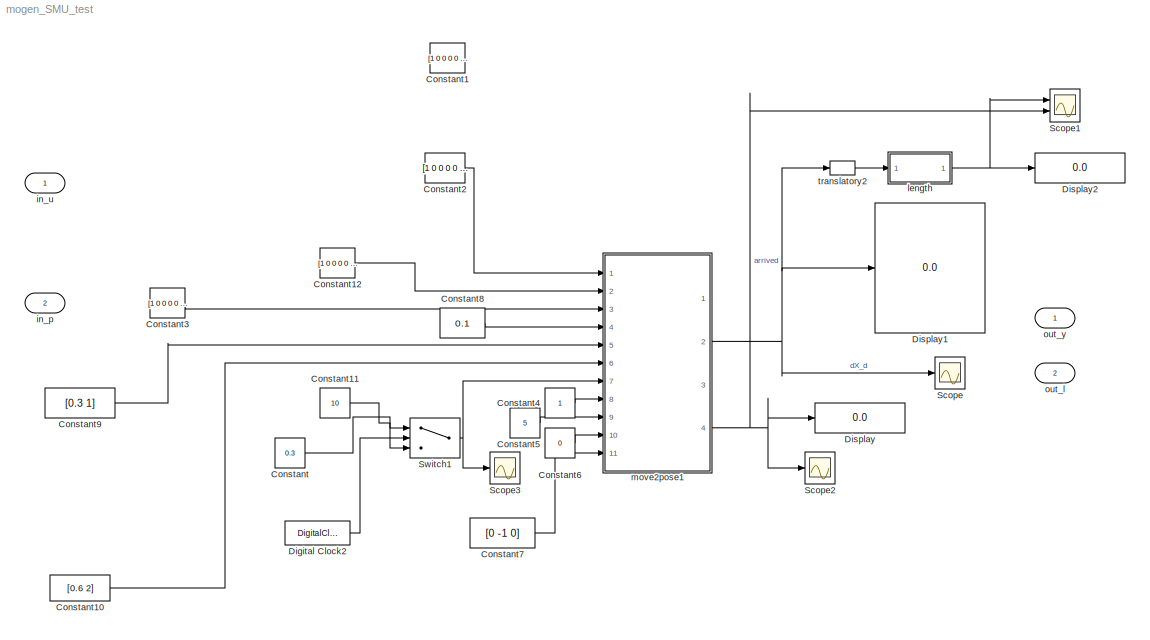
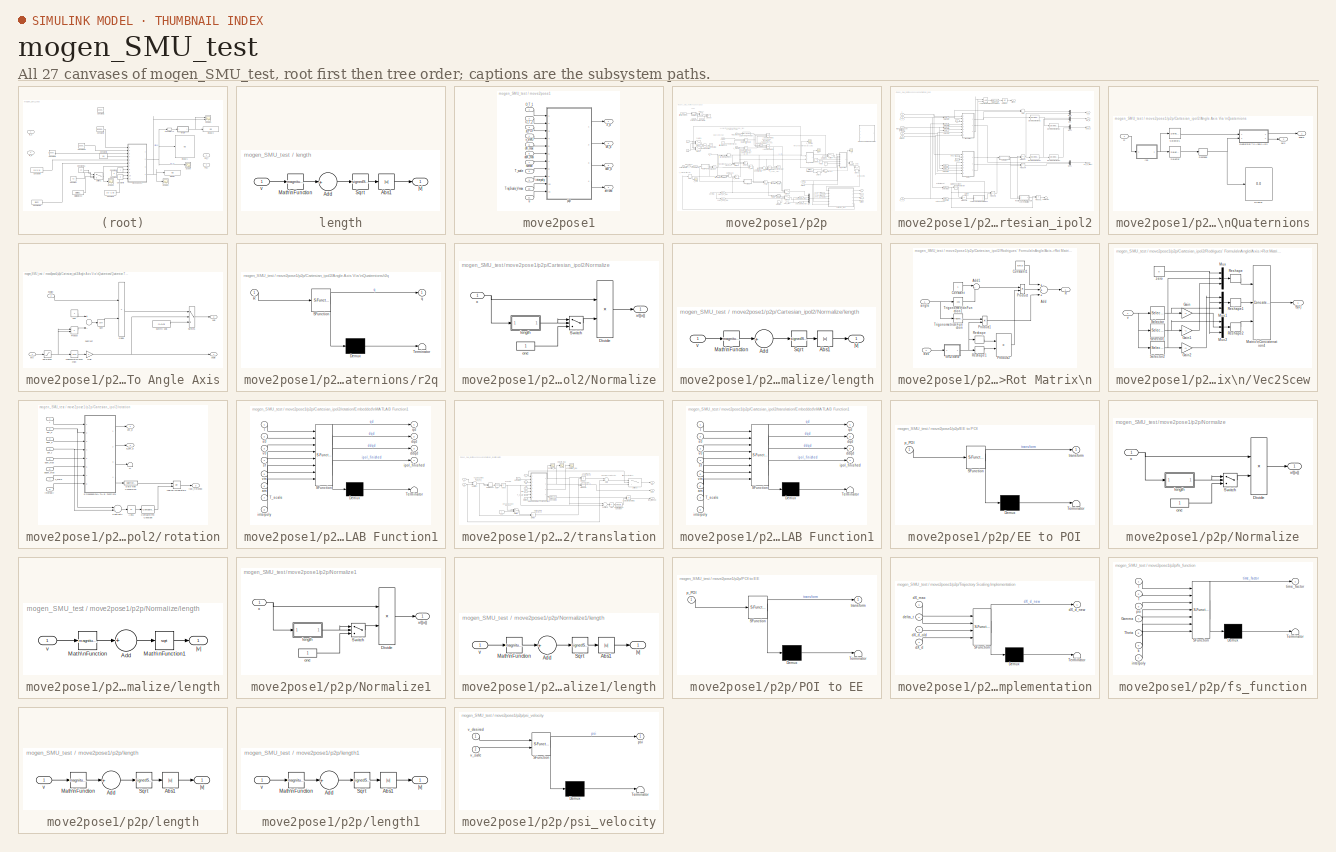
[diagram: thumbnail index - all 27 canvases of the model, root first then tree order]
MODEL mogen_SMU_test
KIND model
BLOCK [Constant] Constant
  SID = 337
  Value = 0.3
BLOCK [Constant] Constant1
  SID = 339
  Value = [1 0 0 0 0 -1 0 0 0 0 -1 0 0.313 0.3 0.45 1]
BLOCK [Constant] Constant10
  SID = 349
  Value = [0.6 2]
BLOCK [Constant] Constant11
  SID = 1692
  Value = 10
BLOCK [Constant] Constant12
  SID = 2359
  Value = [1 0 0 0 0 -1 0 0 0 0 -1 0 0.313 -0.4 0.2 1]
BLOCK [Constant] Constant2
  SID = 340
  Value = [1 0 0 0 0 -1 0 0 0 0 -1 0 0.313 -0.4 0.45 1]
  VectorParams1D = off
BLOCK [Constant] Constant3
  SID = 342
  Value = [1 0 0 0 0 1 0 0 0 0 1 0 0 0 0.2 1]
BLOCK [Constant] Constant4
  SID = 343
BLOCK [Constant] Constant5
  SID = 344
  Value = 5
BLOCK [Constant] Constant6
  SID = 345
  Value = 0
BLOCK [Constant] Constant7
  SID = 346
  Value = [0 -1 0]
BLOCK [Constant] Constant8
  SID = 347
  Value = 0.1
BLOCK [Constant] Constant9
  SID = 348
  Value = [0.3 1]
BLOCK [DigitalClock] Digital Clock2
  SID = 2023
  SampleTime = model_sample_time
BLOCK [Display] Display
  Decimation = 1
  Ports = [1]
  SID = 351
BLOCK [Display] Display1
  Decimation = 1
  Ports = [1]
  SID = 352
BLOCK [Display] Display2
  Decimation = 1
  Ports = [1]
  SID = 381
BLOCK [Scope] Scope
  Floating = off
  NumInputPorts = 1
  Ports = [1]
  SID = 350
  ScopeSpecificationString = Simulink.scopes.TimeScopeBlockCfg('CurrentConfiguration', extmgr.ConfigurationSet(extmgr.Configuration('Core','General UI',true),extmgr.Configuration('Core','Source UI',true),extmgr.Configuration('Sources','WiredSimulink',true,'DataLoggingVariableName','ScopeData1'),extmgr.Configuration('Visuals','Time Domain',true,'SerializedDisplays',{struct('MinYLimReal','-0.53231','MaxYLimReal','1.73501','YLab...<+1511ch>
BLOCK [Scope] Scope1
  Floating = off
  NumInputPorts = 2
  Ports = [2]
  SID = 382
  ScopeSpecificationString = Simulink.scopes.TimeScopeBlockCfg('CurrentConfiguration', extmgr.ConfigurationSet(extmgr.Configuration('Core','General UI',true),extmgr.Configuration('Core','Source UI',true),extmgr.Configuration('Sources','WiredSimulink',true,'DataLoggingVariableName','ScopeData1'),extmgr.Configuration('Visuals','Time Domain',true,'SerializedDisplays',{struct('MinYLimReal','-0.03466','MaxYLimReal','0.31193','YLab...<+1474ch>
BLOCK [Scope] Scope2
  Floating = off
  NumInputPorts = 1
  Ports = [1]
  SID = 1355
  ScopeSpecificationString = Simulink.scopes.TimeScopeBlockCfg('CurrentConfiguration', extmgr.ConfigurationSet(extmgr.Configuration('Core','General UI',true),extmgr.Configuration('Core','Source UI',true),extmgr.Configuration('Sources','WiredSimulink',true,'DataLoggingVariableName','ScopeData1'),extmgr.Configuration('Visuals','Time Domain',true,'SerializedDisplays',{struct('MinYLimReal','-1.00000','MaxYLimReal','1.00000','YLab...<+1420ch>
BLOCK [Scope] Scope3
  Floating = off
  NumInputPorts = 1
  Ports = [1]
  SID = 2031
  ScopeSpecificationString = Simulink.scopes.TimeScopeBlockCfg('CurrentConfiguration', extmgr.ConfigurationSet(extmgr.Configuration('Core','General UI',true),extmgr.Configuration('Core','Source UI',true),extmgr.Configuration('Sources','WiredSimulink',true,'DataLoggingVariableName','ScopeData1'),extmgr.Configuration('Visuals','Time Domain',true,'SerializedDisplays',{struct('MinYLimReal','-0.9125','MaxYLimReal','11.2125','YLabe...<+1463ch>
BLOCK [Switch] Switch1
  InputSameDT = off
  SID = 2030
  SaturateOnIntegerOverflow = off
  Threshold = 1.7
BLOCK [Inport] in_p
  IconDisplay = Port number
  OutDataTypeStr = Bus: in_p
  Port = 2
  SID = 2
BLOCK [Inport] in_u
  IconDisplay = Port number
  OutDataTypeStr = Bus: in_u
  SID = 1
BLOCK [SubSystem] length
  Ports = [1, 1]
  RequestExecContextInheritance = off
  SID = 375
BLOCK [Abs] length/Abs1
  SID = 1365
  SaturateOnIntegerOverflow = off
BLOCK [Sum] length/Add
  InputSameDT = off
  Inputs = +
  OutDataTypeStr = Inherit: Inherit via internal rule
  Ports = [1, 1]
  SID = 377
  SaturateOnIntegerOverflow = off
BLOCK [Math] length/Math\nFunction
  Operator = magnitude^2
  Ports = [1, 1]
  SID = 378
BLOCK [Sqrt] length/Sqrt
  Operator = signedSqrt
  SID = 1366
BLOCK [Inport] length/v
  IconDisplay = Port number
  SID = 376
BLOCK [Outport] length/|v|
  IconDisplay = Port number
  SID = 380
BLOCK [SubSystem] move2pose1
  Ports = [11, 4]
  RequestExecContextInheritance = off
  SID = 2033
BLOCK [Inport] move2pose1/O_T_1
  IconDisplay = Port number
  SID = 2034
BLOCK [Inport] move2pose1/O_T_2
  IconDisplay = Port number
  Port = 2
  SID = 2035
BLOCK [Inport] move2pose1/T_scale
  IconDisplay = Port number
  Port = 8
  SID = 2041
BLOCK [Inport] move2pose1/TrajScale_Vmax
  IconDisplay = Port number
  Port = 10
  SID = 2043
BLOCK [Outport] move2pose1/X_d
  IconDisplay = Port number
  SID = 2355
BLOCK [Outport] move2pose1/arrived
  IconDisplay = Port number
  Port = 4
  SID = 2358
BLOCK [Outport] move2pose1/dX_d
  IconDisplay = Port number
  Port = 2
  SID = 2356
BLOCK [Inport] move2pose1/dX_max
  IconDisplay = Port number
  Port = 5
  SID = 2038
BLOCK [Outport] move2pose1/ddX_d
  IconDisplay = Port number
  Port = 3
  SID = 2357
BLOCK [Inport] move2pose1/ddX_max
  IconDisplay = Port number
  Port = 6
  SID = 2039
BLOCK [Inport] move2pose1/human
  IconDisplay = Port number
  Port = 7
  SID = 2040
BLOCK [Inport] move2pose1/interpoly
  IconDisplay = Port number
  Port = 9
  SID = 2042
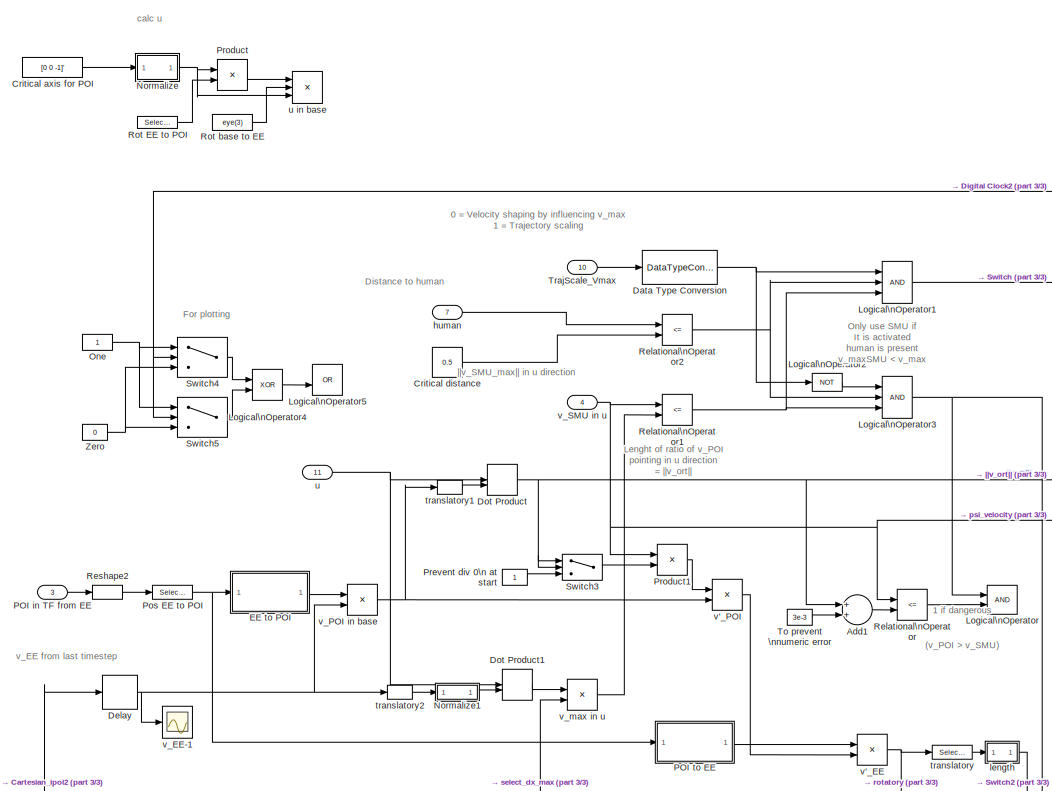
[diagram: move2pose1/p2p - part 1/3, left side, full height]
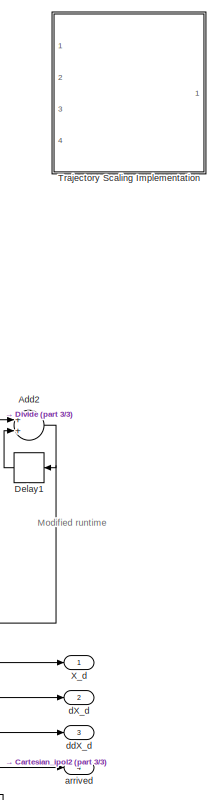
[diagram: move2pose1/p2p - part 2/3, right side, full height]
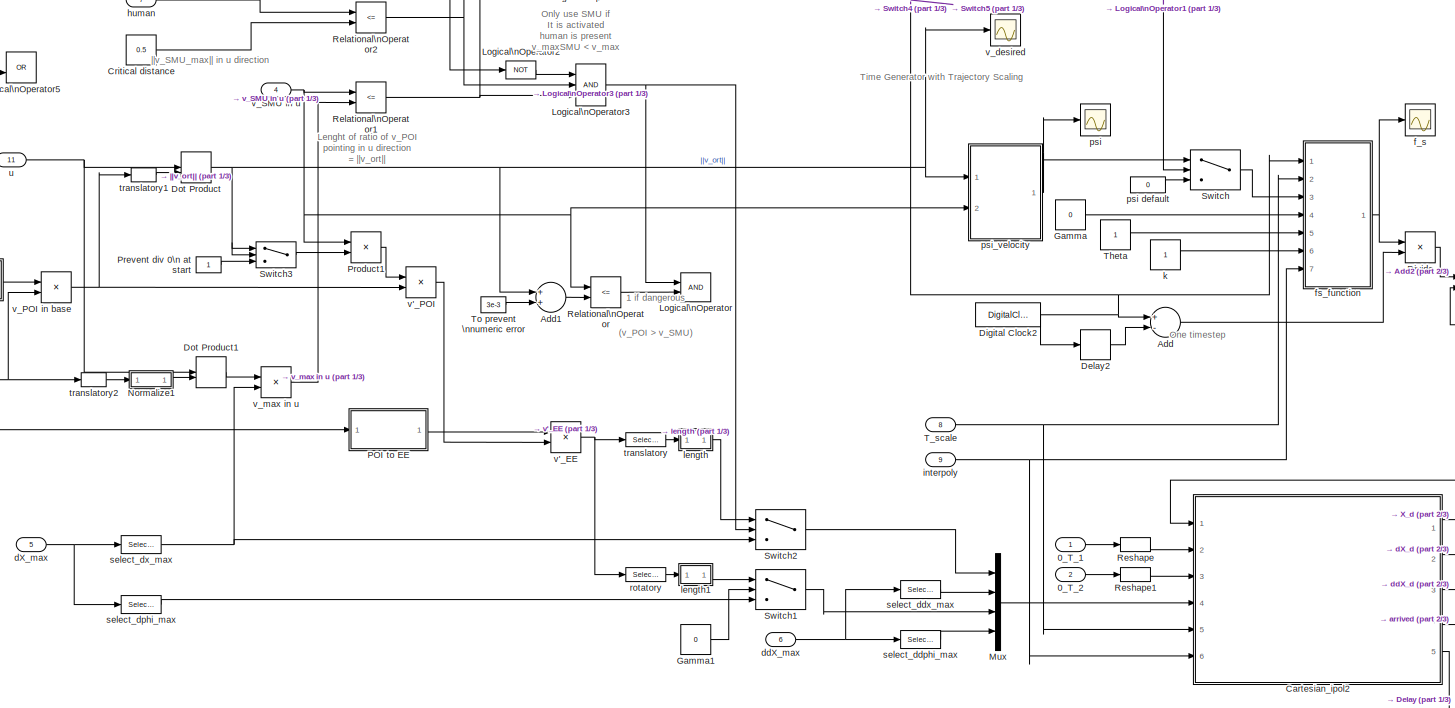
[diagram: move2pose1/p2p - part 3/3, full width, middle band]
BLOCK [SubSystem] move2pose1/p2p
  Ports = [11, 4]
  RequestExecContextInheritance = off
  SID = 2045
BLOCK [Inport] move2pose1/p2p/0_T_1
  IconDisplay = Port number
  SID = 2046
BLOCK [Inport] move2pose1/p2p/0_T_2
  IconDisplay = Port number
  Port = 2
  SID = 2047
BLOCK [Sum] move2pose1/p2p/Add
  InputSameDT = off
  Inputs = +-
  OutDataTypeStr = Inherit: Inherit via internal rule
  Ports = [2, 1]
  SID = 2057
  SaturateOnIntegerOverflow = off
BLOCK [Sum] move2pose1/p2p/Add1
  Commented = on
  InputSameDT = off
  OutDataTypeStr = Inherit: Inherit via internal rule
  Ports = [2, 1]
  SID = 2058
  SaturateOnIntegerOverflow = off
BLOCK [Sum] move2pose1/p2p/Add2
  InputSameDT = off
  OutDataTypeStr = Inherit: Inherit via internal rule
  Ports = [2, 1]
  SID = 2059
  SaturateOnIntegerOverflow = off
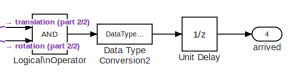
[diagram: move2pose1/p2p/Cartesian_ipol2 - part 1/2, top center region]
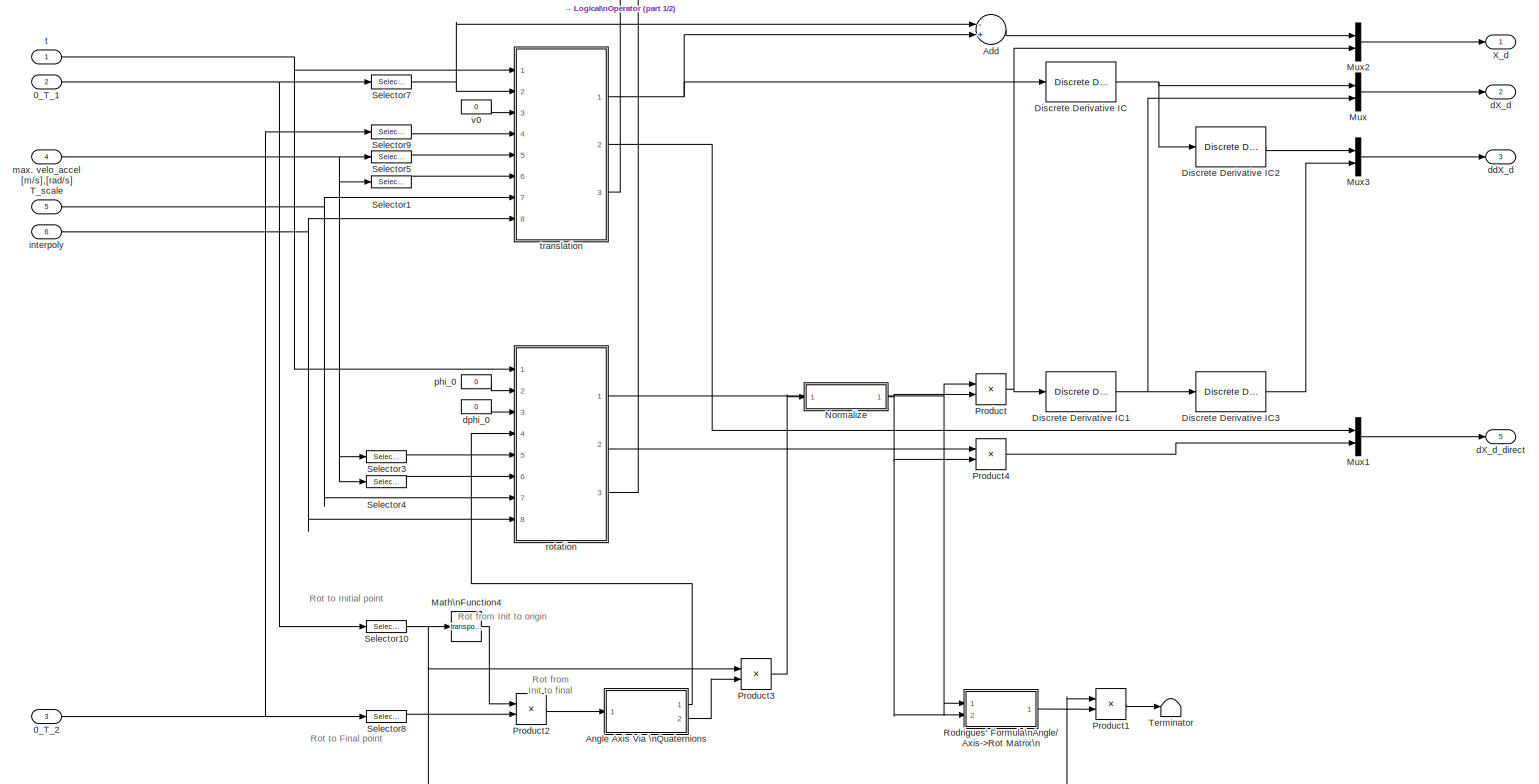
[diagram: move2pose1/p2p/Cartesian_ipol2 - part 2/2, most of the canvas]
BLOCK [SubSystem] move2pose1/p2p/Cartesian_ipol2
  Ports = [6, 5]
  RequestExecContextInheritance = off
  SID = 2060
  TreatAsAtomicUnit = on
BLOCK [Inport] move2pose1/p2p/Cartesian_ipol2/0_T_1
  IconDisplay = Port number
  Port = 2
  SID = 2062
BLOCK [Inport] move2pose1/p2p/Cartesian_ipol2/0_T_2
  IconDisplay = Port number
  Port = 3
  SID = 2063
BLOCK [Sum] move2pose1/p2p/Cartesian_ipol2/Add
  InputSameDT = off
  Inputs = -+
  OutDataTypeStr = Inherit: Inherit via internal rule
  Ports = [2, 1]
  SID = 2067
  SaturateOnIntegerOverflow = off
BLOCK [SubSystem] move2pose1/p2p/Cartesian_ipol2/Angle Axis Via \nQuaternions
  Ports = [1, 2]
  RequestExecContextInheritance = off
  SID = 2068
BLOCK [Display] move2pose1/p2p/Cartesian_ipol2/Angle Axis Via \nQuaternions/Display
  Decimation = 1
  Ports = [1]
  SID = 2070
BLOCK [SubSystem] move2pose1/p2p/Cartesian_ipol2/Angle Axis Via \nQuaternions/Quaternion To Angle Axis
  Ports = [2, 2]
  RequestExecContextInheritance = off
  SID = 2071
BLOCK [Product] move2pose1/p2p/Cartesian_ipol2/Angle Axis Via \nQuaternions/Quaternion To Angle Axis/Divide
  InputSameDT = off
  Inputs = */
  OutDataTypeStr = Inherit: Inherit via internal rule
  Ports = [2, 1]
  RndMeth = Floor
  SID = 2074
  SaturateOnIntegerOverflow = off
BLOCK [Gain] move2pose1/p2p/Cartesian_ipol2/Angle Axis Via \nQuaternions/Quaternion To Angle Axis/Gain
  Gain = 2
  OutDataTypeStr = Inherit: Inherit via internal rule
  ParamDataTypeStr = Inherit: Inherit via internal rule
  SID = 2075
  SaturateOnIntegerOverflow = off
BLOCK [Product] move2pose1/p2p/Cartesian_ipol2/Angle Axis Via \nQuaternions/Quaternion To Angle Axis/Product
  InputSameDT = off
  OutDataTypeStr = Inherit: Inherit via internal rule
  Ports = [2, 1]
  SID = 2076
  SaturateOnIntegerOverflow = off
BLOCK [Saturate] move2pose1/p2p/Cartesian_ipol2/Angle Axis Via \nQuaternions/Quaternion To Angle Axis/Saturation
  InputPortMap = u0
  LowerLimit = -1
  Ports = [1, 1]
  SID = 2077
  UpperLimit = 1
BLOCK [Sqrt] move2pose1/p2p/Cartesian_ipol2/Angle Axis Via \nQuaternions/Quaternion To Angle Axis/Sqrt
  SID = 2078
BLOCK [Sum] move2pose1/p2p/Cartesian_ipol2/Angle Axis Via \nQuaternions/Quaternion To Angle Axis/Subtract
  InputSameDT = off
  Inputs = +-
  OutDataTypeStr = Inherit: Inherit via internal rule
  Ports = [2, 1]
  SID = 2079
  SaturateOnIntegerOverflow = off
BLOCK [Switch] move2pose1/p2p/Cartesian_ipol2/Angle Axis Via \nQuaternions/Quaternion To Angle Axis/Switch1
  Criteria = u2 ~= 0
  InputSameDT = off
  SID = 2080
  SaturateOnIntegerOverflow = off
BLOCK [Trigonometry] move2pose1/p2p/Cartesian_ipol2/Angle Axis Via \nQuaternions/Quaternion To Angle Axis/Trigonometric\nFunction
  Operator = acos
  Ports = [1, 1]
  SID = 2081
BLOCK [Outport] move2pose1/p2p/Cartesian_ipol2/Angle Axis Via \nQuaternions/Quaternion To Angle Axis/angle
  IconDisplay = Port number
  SID = 2084
BLOCK [Outport] move2pose1/p2p/Cartesian_ipol2/Angle Axis Via \nQuaternions/Quaternion To Angle Axis/axis
  IconDisplay = Port number
  Port = 2
  SID = 2085
BLOCK [Constant] move2pose1/p2p/Cartesian_ipol2/Angle Axis Via \nQuaternions/Quaternion To Angle Axis/dummy axis
  SID = 2082
  Value = [1,0,0]
BLOCK [Inport] move2pose1/p2p/Cartesian_ipol2/Angle Axis Via \nQuaternions/Quaternion To Angle Axis/epsilon
  IconDisplay = Port number
  Port = 2
  SID = 2073
BLOCK [Inport] move2pose1/p2p/Cartesian_ipol2/Angle Axis Via \nQuaternions/Quaternion To Angle Axis/eta
  IconDisplay = Port number
  SID = 2072
BLOCK [Constant] move2pose1/p2p/Cartesian_ipol2/Angle Axis Via \nQuaternions/Quaternion To Angle Axis/one
  SID = 2083
BLOCK [Inport] move2pose1/p2p/Cartesian_ipol2/Angle Axis Via \nQuaternions/R
  IconDisplay = Port number
  SID = 2069
BLOCK [Reshape] move2pose1/p2p/Cartesian_ipol2/Angle Axis Via \nQuaternions/Reshape
  OutputDimensionality = Column vector (2-D)
  Ports = [1, 1]
  SID = 2086
BLOCK [Selector] move2pose1/p2p/Cartesian_ipol2/Angle Axis Via \nQuaternions/Selector
  IndexOptions = Index vector (dialog)
  Indices = 2:4
  InputPortWidth = 4
  OutputSizes = 1
  Ports = [1, 1]
  SID = 2087
BLOCK [Selector] move2pose1/p2p/Cartesian_ipol2/Angle Axis Via \nQuaternions/Selector1
  IndexOptions = Index vector (dialog)
  Indices = 1
  InputPortWidth = 4
  OutputSizes = 1
  Ports = [1, 1]
  SID = 2088
BLOCK [Outport] move2pose1/p2p/Cartesian_ipol2/Angle Axis Via \nQuaternions/angle
  IconDisplay = Port number
  SID = 2090
BLOCK [Outport] move2pose1/p2p/Cartesian_ipol2/Angle Axis Via \nQuaternions/axis
  IconDisplay = Port number
  Port = 2
  SID = 2091
BLOCK [SubSystem] move2pose1/p2p/Cartesian_ipol2/Angle Axis Via \nQuaternions/r2q
  ErrorFcn = Stateflow.Translate.translate
  PermitHierarchicalResolution = ExplicitOnly
  Ports = [1, 1]
  RequestExecContextInheritance = off
  SFBlockType = MATLAB Function
  SID = 2089
  TreatAsAtomicUnit = on
BLOCK [Demux] move2pose1/p2p/Cartesian_ipol2/Angle Axis Via \nQuaternions/r2q/ Demux 
  Outputs = 1
  Ports = [1, 1]
  SID = 2089::227
BLOCK [S-Function] move2pose1/p2p/Cartesian_ipol2/Angle Axis Via \nQuaternions/r2q/ SFunction 
  EnableBusSupport = on
  FunctionName = sf_sfun
  PortCounts = [1 2]
  Ports = [1, 2]
  SFcnIsStateOwnerBlock = off
  SFunctionDeploymentMode = off
  SID = 2089::226
  Tag = Stateflow S-Function mogen_SMU_test 2
BLOCK [Terminator] move2pose1/p2p/Cartesian_ipol2/Angle Axis Via \nQuaternions/r2q/ Terminator 
  SID = 2089::228
BLOCK [Inport] move2pose1/p2p/Cartesian_ipol2/Angle Axis Via \nQuaternions/r2q/R
  IconDisplay = Port number
  SID = 2089::1
BLOCK [Outport] move2pose1/p2p/Cartesian_ipol2/Angle Axis Via \nQuaternions/r2q/q
  IconDisplay = Port number
  SID = 2089::5
BLOCK [DataTypeConversion] move2pose1/p2p/Cartesian_ipol2/Data Type Conversion2
  OutDataTypeStr = double
  RndMeth = Floor
  SID = 2092
  SaturateOnIntegerOverflow = off
BLOCK [Reference] move2pose1/p2p/Cartesian_ipol2/Discrete Derivative IC  REF=utils/Discrete Derivative IC  (lib defined in mdl_b4a2d5202953, slx_566556b4cd74)
  Ports = [1, 1]
  SID = 2093
  SourceBlock = utils/Discrete Derivative IC
  model_sample_time = model_sample_time
BLOCK [Reference] move2pose1/p2p/Cartesian_ipol2/Discrete Derivative IC1  REF=utils/Discrete Derivative IC  (lib defined in mdl_b4a2d5202953, slx_566556b4cd74)
  Ports = [1, 1]
  SID = 2094
  SourceBlock = utils/Discrete Derivative IC
  model_sample_time = model_sample_time
BLOCK [Reference] move2pose1/p2p/Cartesian_ipol2/Discrete Derivative IC2  REF=utils/Discrete Derivative IC  (lib defined in mdl_b4a2d5202953, slx_566556b4cd74)
  Ports = [1, 1]
  SID = 2095
  SourceBlock = utils/Discrete Derivative IC
  model_sample_time = model_sample_time
BLOCK [Reference] move2pose1/p2p/Cartesian_ipol2/Discrete Derivative IC3  REF=utils/Discrete Derivative IC  (lib defined in mdl_b4a2d5202953, slx_566556b4cd74)
  Ports = [1, 1]
  SID = 2096
  SourceBlock = utils/Discrete Derivative IC
  model_sample_time = model_sample_time
BLOCK [Logic] move2pose1/p2p/Cartesian_ipol2/Logical\nOperator
  AllPortsSameDT = off
  OutDataTypeStr = boolean
  Ports = [2, 1]
  SID = 2097
BLOCK [Math] move2pose1/p2p/Cartesian_ipol2/Math\nFunction4
  Operator = transpose
  Ports = [1, 1]
  SID = 2098
BLOCK [Mux] move2pose1/p2p/Cartesian_ipol2/Mux
  DisplayOption = bar
  Inputs = 2
  Ports = [2, 1]
  SID = 2099
BLOCK [Mux] move2pose1/p2p/Cartesian_ipol2/Mux1
  DisplayOption = bar
  Inputs = 2
  Ports = [2, 1]
  SID = 2100
BLOCK [Mux] move2pose1/p2p/Cartesian_ipol2/Mux2
  DisplayOption = bar
  Inputs = 2
  Ports = [2, 1]
  SID = 2101
BLOCK [Mux] move2pose1/p2p/Cartesian_ipol2/Mux3
  DisplayOption = bar
  Inputs = 2
  Ports = [2, 1]
  SID = 2102
BLOCK [SubSystem] move2pose1/p2p/Cartesian_ipol2/Normalize
  Ports = [1, 1]
  RequestExecContextInheritance = off
  SID = 2103
BLOCK [Product] move2pose1/p2p/Cartesian_ipol2/Normalize/Divide
  InputSameDT = off
  Inputs = */
  OutDataTypeStr = Inherit: Inherit via internal rule
  Ports = [2, 1]
  RndMeth = Floor
  SID = 2105
  SaturateOnIntegerOverflow = off
BLOCK [Switch] move2pose1/p2p/Cartesian_ipol2/Normalize/Switch
  Criteria = u2 > Threshold
  InputSameDT = off
  SID = 2106
  SaturateOnIntegerOverflow = off
BLOCK [SubSystem] move2pose1/p2p/Cartesian_ipol2/Normalize/length
  Ports = [1, 1]
  RequestExecContextInheritance = off
  SID = 2107
BLOCK [Abs] move2pose1/p2p/Cartesian_ipol2/Normalize/length/Abs1
  SID = 2109
  SaturateOnIntegerOverflow = off
BLOCK [Sum] move2pose1/p2p/Cartesian_ipol2/Normalize/length/Add
  InputSameDT = off
  Inputs = +
  OutDataTypeStr = Inherit: Inherit via internal rule
  Ports = [1, 1]
  SID = 2110
  SaturateOnIntegerOverflow = off
BLOCK [Math] move2pose1/p2p/Cartesian_ipol2/Normalize/length/Math\nFunction
  Operator = magnitude^2
  Ports = [1, 1]
  SID = 2111
BLOCK [Sqrt] move2pose1/p2p/Cartesian_ipol2/Normalize/length/Sqrt
  Operator = signedSqrt
  SID = 2112
BLOCK [Inport] move2pose1/p2p/Cartesian_ipol2/Normalize/length/v
  IconDisplay = Port number
  SID = 2108
BLOCK [Outport] move2pose1/p2p/Cartesian_ipol2/Normalize/length/|v|
  IconDisplay = Port number
  SID = 2113
BLOCK [Constant] move2pose1/p2p/Cartesian_ipol2/Normalize/one
  SID = 2114
BLOCK [Inport] move2pose1/p2p/Cartesian_ipol2/Normalize/x
  IconDisplay = Port number
  SID = 2104
BLOCK [Outport] move2pose1/p2p/Cartesian_ipol2/Normalize/x//||x||
  IconDisplay = Port number
  SID = 2115
BLOCK [Product] move2pose1/p2p/Cartesian_ipol2/Product
  InputSameDT = off
  OutDataTypeStr = Inherit: Inherit via internal rule
  Ports = [2, 1]
  RndMeth = Floor
  SID = 2116
  SaturateOnIntegerOverflow = off
BLOCK [Product] move2pose1/p2p/Cartesian_ipol2/Product1
  Commented = on
  InputSameDT = off
  Multiplication = Matrix(*)
  OutDataTypeStr = Inherit: Inherit via internal rule
  Ports = [2, 1]
  SID = 2117
  SaturateOnIntegerOverflow = off
BLOCK [Product] move2pose1/p2p/Cartesian_ipol2/Product2
  InputSameDT = off
  Multiplication = Matrix(*)
  OutDataTypeStr = Inherit: Inherit via internal rule
  Ports = [2, 1]
  SID = 2118
  SaturateOnIntegerOverflow = off
BLOCK [Product] move2pose1/p2p/Cartesian_ipol2/Product3
  InputSameDT = off
  Multiplication = Matrix(*)
  OutDataTypeStr = Inherit: Inherit via internal rule
  Ports = [2, 1]
  RndMeth = Floor
  SID = 2119
  SaturateOnIntegerOverflow = off
BLOCK [Product] move2pose1/p2p/Cartesian_ipol2/Product4
  InputSameDT = off
  OutDataTypeStr = Inherit: Inherit via internal rule
  Ports = [2, 1]
  RndMeth = Floor
  SID = 2120
  SaturateOnIntegerOverflow = off
BLOCK [SubSystem] move2pose1/p2p/Cartesian_ipol2/Rodrigues' Formula\nAngle//Axis->Rot Matrix\n
  Commented = on
  Ports = [2, 1]
  RequestExecContextInheritance = off
  SID = 2121
BLOCK [Sum] move2pose1/p2p/Cartesian_ipol2/Rodrigues' Formula\nAngle//Axis->Rot Matrix\n/Add
  InputSameDT = off
  Inputs = +++
  OutDataTypeStr = Inherit: Inherit via internal rule
  Ports = [3, 1]
  SID = 2124
  SaturateOnIntegerOverflow = off
BLOCK [Sum] move2pose1/p2p/Cartesian_ipol2/Rodrigues' Formula\nAngle//Axis->Rot Matrix\n/Add1
  IconShape = round
  InputSameDT = off
  Inputs = |+-
  OutDataTypeStr = Inherit: Inherit via internal rule
  Ports = [2, 1]
  SID = 2125
  SaturateOnIntegerOverflow = off
BLOCK [Constant] move2pose1/p2p/Cartesian_ipol2/Rodrigues' Formula\nAngle//Axis->Rot Matrix\n/Constant
  SID = 2126
BLOCK [Constant] move2pose1/p2p/Cartesian_ipol2/Rodrigues' Formula\nAngle//Axis->Rot Matrix\n/Constant1
  SID = 2127
  Value = eye(3)
BLOCK [Product] move2pose1/p2p/Cartesian_ipol2/Rodrigues' Formula\nAngle//Axis->Rot Matrix\n/Product
  InputSameDT = off
  OutDataTypeStr = Inherit: Inherit via internal rule
  Ports = [2, 1]
  SID = 2128
  SaturateOnIntegerOverflow = off
BLOCK [Product] move2pose1/p2p/Cartesian_ipol2/Rodrigues' Formula\nAngle//Axis->Rot Matrix\n/Product1
  InputSameDT = off
  OutDataTypeStr = Inherit: Inherit via internal rule
  Ports = [2, 1]
  SID = 2129
  SaturateOnIntegerOverflow = off
BLOCK [Product] move2pose1/p2p/Cartesian_ipol2/Rodrigues' Formula\nAngle//Axis->Rot Matrix\n/Product2
  InputSameDT = off
  Multiplication = Matrix(*)
  OutDataTypeStr = Inherit: Inherit via internal rule
  Ports = [2, 1]
  SID = 2130
  SaturateOnIntegerOverflow = off
BLOCK [Outport] move2pose1/p2p/Cartesian_ipol2/Rodrigues' Formula\nAngle//Axis->Rot Matrix\n/R
  IconDisplay = Port number
  SID = 2152
BLOCK [Reshape] move2pose1/p2p/Cartesian_ipol2/Rodrigues' Formula\nAngle//Axis->Rot Matrix\n/Reshape
  OutputDimensionality = Customize
  OutputDimensions = [3,3]
  Ports = [1, 1]
  SID = 2131
BLOCK [Reshape] move2pose1/p2p/Cartesian_ipol2/Rodrigues' Formula\nAngle//Axis->Rot Matrix\n/Reshape1
  OutputDimensionality = Customize
  OutputDimensions = [3,3]
  Ports = [1, 1]
  SID = 2132
BLOCK [Trigonometry] move2pose1/p2p/Cartesian_ipol2/Rodrigues' Formula\nAngle//Axis->Rot Matrix\n/Trigonometric\nFunction
  Ports = [1, 1]
  SID = 2133
BLOCK [Trigonometry] move2pose1/p2p/Cartesian_ipol2/Rodrigues' Formula\nAngle//Axis->Rot Matrix\n/Trigonometric\nFunction1
  Operator = cos
  Ports = [1, 1]
  SID = 2134
BLOCK [SubSystem] move2pose1/p2p/Cartesian_ipol2/Rodrigues' Formula\nAngle//Axis->Rot Matrix\n/Vec2Scew
  Ports = [1, 1]
  RequestExecContextInheritance = off
  SID = 2135
BLOCK [Gain] move2pose1/p2p/Cartesian_ipol2/Rodrigues' Formula\nAngle//Axis->Rot Matrix\n/Vec2Scew/Gain
  Gain = -1
  SID = 2137
BLOCK [Gain] move2pose1/p2p/Cartesian_ipol2/Rodrigues' Formula\nAngle//Axis->Rot Matrix\n/Vec2Scew/Gain1
  Gain = -1
  SID = 2138
BLOCK [Gain] move2pose1/p2p/Cartesian_ipol2/Rodrigues' Formula\nAngle//Axis->Rot Matrix\n/Vec2Scew/Gain2
  Gain = -1
  SID = 2139
BLOCK [Concatenate] move2pose1/p2p/Cartesian_ipol2/Rodrigues' Formula\nAngle//Axis->Rot Matrix\n/Vec2Scew/Matrix\nConcatenation4
  ConcatenateDimension = 2
  Mode = Multidimensional array
  NumInputs = 3
  Ports = [3, 1]
  SID = 2140
BLOCK [Mux] move2pose1/p2p/Cartesian_ipol2/Rodrigues' Formula\nAngle//Axis->Rot Matrix\n/Vec2Scew/Mux
  DisplayOption = bar
  Inputs = 3
  Ports = [3, 1]
  SID = 2141
BLOCK [Mux] move2pose1/p2p/Cartesian_ipol2/Rodrigues' Formula\nAngle//Axis->Rot Matrix\n/Vec2Scew/Mux1
  DisplayOption = bar
  Inputs = 3
  Ports = [3, 1]
  SID = 2142
BLOCK [Mux] move2pose1/p2p/Cartesian_ipol2/Rodrigues' Formula\nAngle//Axis->Rot Matrix\n/Vec2Scew/Mux2
  DisplayOption = bar
  Inputs = 3
  Ports = [3, 1]
  SID = 2143
BLOCK [Reshape] move2pose1/p2p/Cartesian_ipol2/Rodrigues' Formula\nAngle//Axis->Rot Matrix\n/Vec2Scew/Reshape
  OutputDimensionality = Customize
  OutputDimensions = [3,1]
  Ports = [1, 1]
  SID = 2144
BLOCK [Reshape] move2pose1/p2p/Cartesian_ipol2/Rodrigues' Formula\nAngle//Axis->Rot Matrix\n/Vec2Scew/Reshape1
  OutputDimensionality = Customize
  OutputDimensions = [3,1]
  Ports = [1, 1]
  SID = 2145
BLOCK [Reshape] move2pose1/p2p/Cartesian_ipol2/Rodrigues' Formula\nAngle//Axis->Rot Matrix\n/Vec2Scew/Reshape2
  OutputDimensionality = Customize
  OutputDimensions = [3,1]
  Ports = [1, 1]
  SID = 2146
BLOCK [Outport] move2pose1/p2p/Cartesian_ipol2/Rodrigues' Formula\nAngle//Axis->Rot Matrix\n/Vec2Scew/S(v)
  IconDisplay = Port number
  SID = 2151
BLOCK [Selector] move2pose1/p2p/Cartesian_ipol2/Rodrigues' Formula\nAngle//Axis->Rot Matrix\n/Vec2Scew/Selector
  IndexOptions = Index vector (dialog)
  Indices = [1]
  InputPortWidth = 3
  OutputSizes = 1
  Ports = [1, 1]
  SID = 2147
BLOCK [Selector] move2pose1/p2p/Cartesian_ipol2/Rodrigues' Formula\nAngle//Axis->Rot Matrix\n/Vec2Scew/Selector1
  IndexOptions = Index vector (dialog)
  Indices = [2]
  InputPortWidth = 3
  OutputSizes = 1
  Ports = [1, 1]
  SID = 2148
BLOCK [Selector] move2pose1/p2p/Cartesian_ipol2/Rodrigues' Formula\nAngle//Axis->Rot Matrix\n/Vec2Scew/Selector2
  IndexOptions = Index vector (dialog)
  Indices = [3]
  InputPortWidth = 3
  OutputSizes = 1
  Ports = [1, 1]
  SID = 2149
BLOCK [Inport] move2pose1/p2p/Cartesian_ipol2/Rodrigues' Formula\nAngle//Axis->Rot Matrix\n/Vec2Scew/v
  IconDisplay = Port number
  SID = 2136
BLOCK [Constant] move2pose1/p2p/Cartesian_ipol2/Rodrigues' Formula\nAngle//Axis->Rot Matrix\n/Vec2Scew/zero
  SID = 2150
  Value = 0
BLOCK [Inport] move2pose1/p2p/Cartesian_ipol2/Rodrigues' Formula\nAngle//Axis->Rot Matrix\n/angle
  IconDisplay = Port number
  SID = 2122
BLOCK [Inport] move2pose1/p2p/Cartesian_ipol2/Rodrigues' Formula\nAngle//Axis->Rot Matrix\n/axis
  IconDisplay = Port number
  Port = 2
  SID = 2123
BLOCK [Selector] move2pose1/p2p/Cartesian_ipol2/Selector1
  IndexOptions = Index vector (dialog)
  Indices = 2
  InputPortWidth = 4
  OutputSizes = 1
  Ports = [1, 1]
  SID = 2153
BLOCK [Selector] move2pose1/p2p/Cartesian_ipol2/Selector10
  IndexOptions = Index vector (dialog),Index vector (dialog)
  Indices = [1:3],[1:3]
  InputPortWidth = 7
  NumberOfDimensions = 2
  OutputSizes = 1
  Ports = [1, 1]
  SID = 2154
BLOCK [Selector] move2pose1/p2p/Cartesian_ipol2/Selector3
  IndexOptions = Index vector (dialog)
  Indices = 3
  InputPortWidth = 4
  OutputSizes = 1
  Ports = [1, 1]
  SID = 2155
BLOCK [Selector] move2pose1/p2p/Cartesian_ipol2/Selector4
  IndexOptions = Index vector (dialog)
  Indices = 4
  InputPortWidth = 4
  OutputSizes = 1
  Ports = [1, 1]
  SID = 2156
BLOCK [Selector] move2pose1/p2p/Cartesian_ipol2/Selector5
  IndexOptions = Index vector (dialog)
  Indices = 1
  InputPortWidth = 4
  OutputSizes = 1
  Ports = [1, 1]
  SID = 2157
BLOCK [Selector] move2pose1/p2p/Cartesian_ipol2/Selector7
  IndexOptions = Index vector (dialog),Index vector (dialog)
  Indices = [1:3],[4]
  InputPortWidth = 7
  NumberOfDimensions = 2
  OutputSizes = 1
  Ports = [1, 1]
  SID = 2158
BLOCK [Selector] move2pose1/p2p/Cartesian_ipol2/Selector8
  IndexOptions = Index vector (dialog),Index vector (dialog)
  Indices = [1:3],[1:3]
  InputPortWidth = 7
  NumberOfDimensions = 2
  OutputSizes = 1
  Ports = [1, 1]
  SID = 2159
BLOCK [Selector] move2pose1/p2p/Cartesian_ipol2/Selector9
  IndexOptions = Index vector (dialog),Index vector (dialog)
  Indices = [1:3],[4]
  InputPortWidth = 7
  NumberOfDimensions = 2
  OutputSizes = 1
  Ports = [1, 1]
  SID = 2160
BLOCK [Inport] move2pose1/p2p/Cartesian_ipol2/T_scale
  IconDisplay = Port number
  Port = 5
  SID = 2065
BLOCK [Terminator] move2pose1/p2p/Cartesian_ipol2/Terminator
  Commented = on
  SID = 2161
BLOCK [UnitDelay] move2pose1/p2p/Cartesian_ipol2/Unit Delay
  SID = 2162
  SampleTime = -1
BLOCK [Outport] move2pose1/p2p/Cartesian_ipol2/X_d
  IconDisplay = Port number
  SID = 2226
BLOCK [Outport] move2pose1/p2p/Cartesian_ipol2/arrived
  IconDisplay = Port number
  Port = 4
  SID = 2229
BLOCK [Outport] move2pose1/p2p/Cartesian_ipol2/dX_d
  IconDisplay = Port number
  Port = 2
  SID = 2227
BLOCK [Outport] move2pose1/p2p/Cartesian_ipol2/dX_d_direct
  IconDisplay = Port number
  Port = 5
  SID = 2230
BLOCK [Outport] move2pose1/p2p/Cartesian_ipol2/ddX_d
  IconDisplay = Port number
  Port = 3
  SID = 2228
BLOCK [Constant] move2pose1/p2p/Cartesian_ipol2/dphi_0
  SID = 2163
  Value = 0
BLOCK [Inport] move2pose1/p2p/Cartesian_ipol2/interpoly
  IconDisplay = Port number
  Port = 6
  SID = 2066
BLOCK [Inport] move2pose1/p2p/Cartesian_ipol2/max. velo_accel [m//s],[rad//s]
  IconDisplay = Port number
  Port = 4
  SID = 2064
BLOCK [Constant] move2pose1/p2p/Cartesian_ipol2/phi_0
  SID = 2164
  Value = 0
BLOCK [SubSystem] move2pose1/p2p/Cartesian_ipol2/rotation
  Ports = [8, 3]
  RequestExecContextInheritance = off
  SID = 2165
BLOCK [Abs] move2pose1/p2p/Cartesian_ipol2/rotation/Abs1
  SID = 2174
  SaturateOnIntegerOverflow = off
BLOCK [Reference] move2pose1/p2p/Cartesian_ipol2/rotation/Compare\nTo Constant  REF=simulink/Logic and Bit\nOperations/Compare\nTo Constant
  OutDataTypeStr = boolean
  Ports = [1, 1]
  SID = 2175
  SourceBlock = simulink/Logic and Bit\nOperations/Compare\nTo Constant
  SourceProductBaseCode = SL
  SourceProductName = Simulink
  SourceType = Compare To Constant
  ZeroCross = on
  const = 1e-9
  relop = <=
BLOCK [DataTypeConversion] move2pose1/p2p/Cartesian_ipol2/rotation/Data Type Conversion
  OutDataTypeStr = boolean
  RndMeth = Floor
  SID = 2176
  SaturateOnIntegerOverflow = off
BLOCK [SubSystem] move2pose1/p2p/Cartesian_ipol2/rotation/Embedded\nMATLAB Function1
  ErrorFcn = Stateflow.Translate.translate
  PermitHierarchicalResolution = ExplicitOnly
  Ports = [8, 4]
  RequestExecContextInheritance = off
  SFBlockType = MATLAB Function
  SID = 2177
  TreatAsAtomicUnit = on
BLOCK [Demux] move2pose1/p2p/Cartesian_ipol2/rotation/Embedded\nMATLAB Function1/ Demux 
  Outputs = 1
  Ports = [1, 1]
  SID = 2177::136376
BLOCK [S-Function] move2pose1/p2p/Cartesian_ipol2/rotation/Embedded\nMATLAB Function1/ SFunction 
  EnableBusSupport = on
  FunctionName = sf_sfun
  PortCounts = [8 5]
  Ports = [8, 5]
  SFcnIsStateOwnerBlock = off
  SFunctionDeploymentMode = off
  SID = 2177::136375
  Tag = Stateflow S-Function mogen_SMU_test 3
BLOCK [Terminator] move2pose1/p2p/Cartesian_ipol2/rotation/Embedded\nMATLAB Function1/ Terminator 
  SID = 2177::136377
BLOCK [Inport] move2pose1/p2p/Cartesian_ipol2/rotation/Embedded\nMATLAB Function1/T_scale
  IconDisplay = Port number
  Port = 7
  SID = 2177::136382
BLOCK [Inport] move2pose1/p2p/Cartesian_ipol2/rotation/Embedded\nMATLAB Function1/am
  IconDisplay = Port number
  Port = 6
  SID = 2177::136249
BLOCK [Outport] move2pose1/p2p/Cartesian_ipol2/rotation/Embedded\nMATLAB Function1/ddqd
  IconDisplay = Port number
  Port = 3
  SID = 2177::136252
BLOCK [Outport] move2pose1/p2p/Cartesian_ipol2/rotation/Embedded\nMATLAB Function1/dqd
  IconDisplay = Port number
  Port = 2
  SID = 2177::136251
BLOCK [Inport] move2pose1/p2p/Cartesian_ipol2/rotation/Embedded\nMATLAB Function1/interpoly
  IconDisplay = Port number
  Port = 8
  SID = 2177::136383
BLOCK [Outport] move2pose1/p2p/Cartesian_ipol2/rotation/Embedded\nMATLAB Function1/ipol_finished
  IconDisplay = Port number
  Port = 4
  SID = 2177::136381
BLOCK [Outport] move2pose1/p2p/Cartesian_ipol2/rotation/Embedded\nMATLAB Function1/qd
  IconDisplay = Port number
  SID = 2177::136250
BLOCK [Inport] move2pose1/p2p/Cartesian_ipol2/rotation/Embedded\nMATLAB Function1/s0
  IconDisplay = Port number
  Port = 2
  SID = 2177::136245
BLOCK [Inport] move2pose1/p2p/Cartesian_ipol2/rotation/Embedded\nMATLAB Function1/sf
  IconDisplay = Port number
  Port = 4
  SID = 2177::136247
BLOCK [Inport] move2pose1/p2p/Cartesian_ipol2/rotation/Embedded\nMATLAB Function1/t
  IconDisplay = Port number
  SID = 2177::136240
BLOCK [Inport] move2pose1/p2p/Cartesian_ipol2/rotation/Embedded\nMATLAB Function1/v0
  IconDisplay = Port number
  Port = 3
  SID = 2177::136246
BLOCK [Inport] move2pose1/p2p/Cartesian_ipol2/rotation/Embedded\nMATLAB Function1/vm
  IconDisplay = Port number
  Port = 5
  SID = 2177::136248
BLOCK [Logic] move2pose1/p2p/Cartesian_ipol2/rotation/Logical\nOperator2
  AllPortsSameDT = off
  Operator = OR
  OutDataTypeStr = boolean
  Ports = [2, 1]
  SID = 2178
BLOCK [Sum] move2pose1/p2p/Cartesian_ipol2/rotation/Subtract1
  InputSameDT = off
  Inputs = -+
  OutDataTypeStr = Inherit: Inherit via internal rule
  Ports = [2, 1]
  SID = 2179
  SaturateOnIntegerOverflow = off
BLOCK [Terminator] move2pose1/p2p/Cartesian_ipol2/rotation/T7
  SID = 2180
BLOCK [Inport] move2pose1/p2p/Cartesian_ipol2/rotation/T_scale
  IconDisplay = Port number
  Port = 7
  SID = 2172
BLOCK [Outport] move2pose1/p2p/Cartesian_ipol2/rotation/d_phi_d
  IconDisplay = Port number
  Port = 2
  SID = 2182
BLOCK [Inport] move2pose1/p2p/Cartesian_ipol2/rotation/ddphi_max
  IconDisplay = Port number
  Port = 6
  SID = 2171
BLOCK [Inport] move2pose1/p2p/Cartesian_ipol2/rotation/dphi_0
  IconDisplay = Port number
  Port = 3
  SID = 2168
BLOCK [Inport] move2pose1/p2p/Cartesian_ipol2/rotation/dphi_max
  IconDisplay = Port number
  Port = 5
  SID = 2170
BLOCK [Inport] move2pose1/p2p/Cartesian_ipol2/rotation/interpoly
  IconDisplay = Port number
  Port = 8
  SID = 2173
BLOCK [Outport] move2pose1/p2p/Cartesian_ipol2/rotation/ipol_finished
  IconDisplay = Port number
  Port = 3
  SID = 2183
BLOCK [Inport] move2pose1/p2p/Cartesian_ipol2/rotation/phi_0
  IconDisplay = Port number
  Port = 2
  SID = 2167
BLOCK [Outport] move2pose1/p2p/Cartesian_ipol2/rotation/phi_d
  IconDisplay = Port number
  SID = 2181
BLOCK [Inport] move2pose1/p2p/Cartesian_ipol2/rotation/phi_f
  IconDisplay = Port number
  Port = 4
  SID = 2169
BLOCK [Inport] move2pose1/p2p/Cartesian_ipol2/rotation/t
  IconDisplay = Port number
  SID = 2166
BLOCK [Inport] move2pose1/p2p/Cartesian_ipol2/t
  IconDisplay = Port number
  SID = 2061
BLOCK [SubSystem] move2pose1/p2p/Cartesian_ipol2/translation
  Ports = [8, 3]
  RequestExecContextInheritance = off
  SID = 2184
BLOCK [Abs] move2pose1/p2p/Cartesian_ipol2/translation/Abs
  SID = 2193
  SaturateOnIntegerOverflow = off
BLOCK [Abs] move2pose1/p2p/Cartesian_ipol2/translation/Abs1
  SID = 2194
  SaturateOnIntegerOverflow = off
BLOCK [Scope] move2pose1/p2p/Cartesian_ipol2/translation/Acceleration_real
  Floating = off
  NumInputPorts = 1
  Ports = [1]
  SID = 2195
  ScopeSpecificationString = Simulink.scopes.TimeScopeBlockCfg('CurrentConfiguration', extmgr.ConfigurationSet(extmgr.Configuration('Core','General UI',true),extmgr.Configuration('Core','Source UI',true),extmgr.Configuration('Sources','WiredSimulink',true,'DataLoggingVariableName','ScopeData1'),extmgr.Configuration('Visuals','Time Domain',true,'SerializedDisplays',{struct('MinYLimReal','-0.97176','MaxYLimReal','0.48428','YLab...<+1489ch>
BLOCK [Sum] move2pose1/p2p/Cartesian_ipol2/translation/Add
  InputSameDT = off
  OutDataTypeStr = Inherit: Inherit via internal rule
  Ports = [2, 1]
  SID = 2196
  SaturateOnIntegerOverflow = off
BLOCK [Reference] move2pose1/p2p/Cartesian_ipol2/translation/Compare\nTo Constant  REF=simulink/Logic and Bit\nOperations/Compare\nTo Constant
  OutDataTypeStr = boolean
  Ports = [1, 1]
  SID = 2197
  SourceBlock = simulink/Logic and Bit\nOperations/Compare\nTo Constant
  SourceProductBaseCode = SL
  SourceProductName = Simulink
  SourceType = Compare To Constant
  ZeroCross = on
  const = 1e-9
  relop = <=
BLOCK [Constant] move2pose1/p2p/Cartesian_ipol2/translation/Constant
  SID = 2198
  Value = 0
BLOCK [DataTypeConversion] move2pose1/p2p/Cartesian_ipol2/translation/Data Type Conversion
  OutDataTypeStr = boolean
  RndMeth = Floor
  SID = 2199
  SaturateOnIntegerOverflow = off
BLOCK [Product] move2pose1/p2p/Cartesian_ipol2/translation/Divide
  InputSameDT = off
  Inputs = /*
  OutDataTypeStr = Inherit: Inherit via internal rule
  Ports = [2, 1]
  RndMeth = Floor
  SID = 2200
  SaturateOnIntegerOverflow = off
BLOCK [DotProduct] move2pose1/p2p/Cartesian_ipol2/translation/Dot Product
  OutDataTypeStr = Inherit: Inherit via internal rule
  OutMin = 0
  SID = 2201
BLOCK [SubSystem] move2pose1/p2p/Cartesian_ipol2/translation/Embedded\nMATLAB Function1
  ErrorFcn = Stateflow.Translate.translate
  PermitHierarchicalResolution = ExplicitOnly
  Ports = [8, 4]
  RequestExecContextInheritance = off
  SFBlockType = MATLAB Function
  SID = 2202
  TreatAsAtomicUnit = on
BLOCK [Demux] move2pose1/p2p/Cartesian_ipol2/translation/Embedded\nMATLAB Function1/ Demux 
  Outputs = 1
  Ports = [1, 1]
  SID = 2202::136376
BLOCK [S-Function] move2pose1/p2p/Cartesian_ipol2/translation/Embedded\nMATLAB Function1/ SFunction 
  EnableBusSupport = on
  FunctionName = sf_sfun
  PortCounts = [8 5]
  Ports = [8, 5]
  SFcnIsStateOwnerBlock = off
  SFunctionDeploymentMode = off
  SID = 2202::136375
  Tag = Stateflow S-Function mogen_SMU_test 4
BLOCK [Terminator] move2pose1/p2p/Cartesian_ipol2/translation/Embedded\nMATLAB Function1/ Terminator 
  SID = 2202::136377
BLOCK [Inport] move2pose1/p2p/Cartesian_ipol2/translation/Embedded\nMATLAB Function1/T_scale
  IconDisplay = Port number
  Port = 7
  SID = 2202::136382
BLOCK [Inport] move2pose1/p2p/Cartesian_ipol2/translation/Embedded\nMATLAB Function1/am
  IconDisplay = Port number
  Port = 6
  SID = 2202::136249
BLOCK [Outport] move2pose1/p2p/Cartesian_ipol2/translation/Embedded\nMATLAB Function1/ddqd
  IconDisplay = Port number
  Port = 3
  SID = 2202::136252
BLOCK [Outport] move2pose1/p2p/Cartesian_ipol2/translation/Embedded\nMATLAB Function1/dqd
  IconDisplay = Port number
  Port = 2
  SID = 2202::136251
BLOCK [Inport] move2pose1/p2p/Cartesian_ipol2/translation/Embedded\nMATLAB Function1/interpoly
  IconDisplay = Port number
  Port = 8
  SID = 2202::136383
BLOCK [Outport] move2pose1/p2p/Cartesian_ipol2/translation/Embedded\nMATLAB Function1/ipol_finished
  IconDisplay = Port number
  Port = 4
  SID = 2202::136381
BLOCK [Outport] move2pose1/p2p/Cartesian_ipol2/translation/Embedded\nMATLAB Function1/qd
  IconDisplay = Port number
  SID = 2202::136250
BLOCK [Inport] move2pose1/p2p/Cartesian_ipol2/translation/Embedded\nMATLAB Function1/s0
  IconDisplay = Port number
  Port = 2
  SID = 2202::136245
BLOCK [Inport] move2pose1/p2p/Cartesian_ipol2/translation/Embedded\nMATLAB Function1/sf
  IconDisplay = Port number
  Port = 4
  SID = 2202::136247
BLOCK [Inport] move2pose1/p2p/Cartesian_ipol2/translation/Embedded\nMATLAB Function1/t
  IconDisplay = Port number
  SID = 2202::136240
BLOCK [Inport] move2pose1/p2p/Cartesian_ipol2/translation/Embedded\nMATLAB Function1/v0
  IconDisplay = Port number
  Port = 3
  SID = 2202::136246
BLOCK [Inport] move2pose1/p2p/Cartesian_ipol2/translation/Embedded\nMATLAB Function1/vm
  IconDisplay = Port number
  Port = 5
  SID = 2202::136248
BLOCK [Logic] move2pose1/p2p/Cartesian_ipol2/translation/Logical\nOperator1
  AllPortsSameDT = off
  Operator = OR
  OutDataTypeStr = boolean
  Ports = [2, 1]
  SID = 2203
BLOCK [Scope] move2pose1/p2p/Cartesian_ipol2/translation/Position_real
  Floating = off
  NumInputPorts = 1
  Ports = [1]
  SID = 2204
  ScopeSpecificationString = Simulink.scopes.TimeScopeBlockCfg('CurrentConfiguration', extmgr.ConfigurationSet(extmgr.Configuration('Core','General UI',true),extmgr.Configuration('Core','Source UI',true),extmgr.Configuration('Sources','WiredSimulink',true,'DataLoggingVariableName','ScopeData2'),extmgr.Configuration('Visuals','Time Domain',true,'SerializedDisplays',{struct('MinYLimReal','-0.05833','MaxYLimReal','0.52494','YLab...<+1485ch>
BLOCK [Product] move2pose1/p2p/Cartesian_ipol2/translation/Product
  InputSameDT = off
  OutDataTypeStr = Inherit: Inherit via internal rule
  Ports = [2, 1]
  RndMeth = Floor
  SID = 2205
  SaturateOnIntegerOverflow = off
BLOCK [Product] move2pose1/p2p/Cartesian_ipol2/translation/Product1
  InputSameDT = off
  OutDataTypeStr = Inherit: Inherit via internal rule
  Ports = [2, 1]
  RndMeth = Floor
  SID = 2206
  SaturateOnIntegerOverflow = off
BLOCK [Sqrt] move2pose1/p2p/Cartesian_ipol2/translation/Sqrt
  Operator = signedSqrt
  SID = 2207
BLOCK [Sum] move2pose1/p2p/Cartesian_ipol2/translation/Subtract
  InputSameDT = off
  Inputs = +-
  OutDataTypeStr = Inherit: Inherit via internal rule
  Ports = [2, 1]
  SID = 2208
  SaturateOnIntegerOverflow = off
BLOCK [Sum] move2pose1/p2p/Cartesian_ipol2/translation/Subtract1
  InputSameDT = off
  Inputs = -+
  OutDataTypeStr = Inherit: Inherit via internal rule
  Ports = [2, 1]
  SID = 2209
  SaturateOnIntegerOverflow = off
BLOCK [Switch] move2pose1/p2p/Cartesian_ipol2/translation/Switch
  Criteria = u2 > Threshold
  InputSameDT = off
  SID = 2210
  SaturateOnIntegerOverflow = off
BLOCK [Switch] move2pose1/p2p/Cartesian_ipol2/translation/Switch3
  Criteria = u2 ~= 0
  InputSameDT = off
  SID = 2211
  SaturateOnIntegerOverflow = off
BLOCK [Inport] move2pose1/p2p/Cartesian_ipol2/translation/T_scale
  IconDisplay = Port number
  Port = 7
  SID = 2191
BLOCK [Scope] move2pose1/p2p/Cartesian_ipol2/translation/Velocity_real
  Floating = off
  NumInputPorts = 1
  Ports = [1]
  SID = 2212
  ScopeSpecificationString = Simulink.scopes.TimeScopeBlockCfg('CurrentConfiguration', extmgr.ConfigurationSet(extmgr.Configuration('Core','General UI',true),extmgr.Configuration('Core','Source UI',true),extmgr.Configuration('Sources','WiredSimulink',true,'DataLoggingVariableName','ScopeData6'),extmgr.Configuration('Visuals','Time Domain',true,'SerializedDisplays',{struct('MinYLimReal','-0.0375','MaxYLimReal','0.3375','YLabel...<+1482ch>
BLOCK [Inport] move2pose1/p2p/Cartesian_ipol2/translation/am
  IconDisplay = Port number
  Port = 6
  SID = 2190
BLOCK [Outport] move2pose1/p2p/Cartesian_ipol2/translation/dqd
  IconDisplay = Port number
  Port = 2
  SID = 2215
BLOCK [Inport] move2pose1/p2p/Cartesian_ipol2/translation/interpoly
  IconDisplay = Port number
  Port = 8
  SID = 2192
BLOCK [Outport] move2pose1/p2p/Cartesian_ipol2/translation/ipol_finished
  IconDisplay = Port number
  Port = 3
  SID = 2216
BLOCK [Constant] move2pose1/p2p/Cartesian_ipol2/translation/one
  SID = 2213
BLOCK [Outport] move2pose1/p2p/Cartesian_ipol2/translation/qd
  IconDisplay = Port number
  SID = 2214
BLOCK [Inport] move2pose1/p2p/Cartesian_ipol2/translation/s0
  IconDisplay = Port number
  Port = 2
  SID = 2186
BLOCK [Inport] move2pose1/p2p/Cartesian_ipol2/translation/sf
  IconDisplay = Port number
  Port = 4
  SID = 2188
BLOCK [Inport] move2pose1/p2p/Cartesian_ipol2/translation/t
  IconDisplay = Port number
  SID = 2185
BLOCK [Inport] move2pose1/p2p/Cartesian_ipol2/translation/v0
  IconDisplay = Port number
  Port = 3
  SID = 2187
BLOCK [Inport] move2pose1/p2p/Cartesian_ipol2/translation/vm
  IconDisplay = Port number
  Port = 5
  SID = 2189
BLOCK [Constant] move2pose1/p2p/Cartesian_ipol2/v0
  SID = 2225
  Value = 0
BLOCK [Constant] move2pose1/p2p/Critical axis for POI
  Commented = on
  SID = 2235
  Value = [0 0 -1]'
BLOCK [Constant] move2pose1/p2p/Critical distance
  SID = 2236
  Value = 0.5
BLOCK [DataTypeConversion] move2pose1/p2p/Data Type Conversion
  OutDataTypeStr = boolean
  RndMeth = Floor
  SID = 2237
  SaturateOnIntegerOverflow = off
BLOCK [Delay] move2pose1/p2p/Delay
  DelayLength = 1
  InputPortMap = u0
  Ports = [1, 1]
  SID = 2238
BLOCK [Delay] move2pose1/p2p/Delay1
  DelayLength = 1
  InputPortMap = u0
  Ports = [1, 1]
  SID = 2239
BLOCK [Delay] move2pose1/p2p/Delay2
  DelayLength = 1
  InputPortMap = u0
  Ports = [1, 1]
  SID = 2240
BLOCK [DigitalClock] move2pose1/p2p/Digital Clock2
  SID = 2241
  SampleTime = model_sample_time
BLOCK [Product] move2pose1/p2p/Divide
  InputSameDT = off
  Inputs = **
  OutDataTypeStr = Inherit: Inherit via internal rule
  Ports = [2, 1]
  RndMeth = Floor
  SID = 2242
  SaturateOnIntegerOverflow = off
BLOCK [DotProduct] move2pose1/p2p/Dot Product
  OutDataTypeStr = Inherit: Inherit via internal rule
  SID = 2243
BLOCK [DotProduct] move2pose1/p2p/Dot Product1
  OutDataTypeStr = Inherit: Inherit via internal rule
  SID = 2244
BLOCK [SubSystem] move2pose1/p2p/EE to POI
  ErrorFcn = Stateflow.Translate.translate
  PermitHierarchicalResolution = ExplicitOnly
  Ports = [1, 1]
  RequestExecContextInheritance = off
  SFBlockType = MATLAB Function
  SID = 2245
  TreatAsAtomicUnit = on
BLOCK [Demux] move2pose1/p2p/EE to POI/ Demux 
  Outputs = 1
  Ports = [1, 1]
  SID = 2245::20
BLOCK [S-Function] move2pose1/p2p/EE to POI/ SFunction 
  EnableBusSupport = on
  FunctionName = sf_sfun
  PortCounts = [1 2]
  Ports = [1, 2]
  SFcnIsStateOwnerBlock = off
  SFunctionDeploymentMode = off
  SID = 2245::19
  Tag = Stateflow S-Function mogen_SMU_test 5
BLOCK [Terminator] move2pose1/p2p/EE to POI/ Terminator 
  SID = 2245::21
BLOCK [Inport] move2pose1/p2p/EE to POI/p_POI
  IconDisplay = Port number
  SID = 2245::1
BLOCK [Outport] move2pose1/p2p/EE to POI/transform
  IconDisplay = Port number
  SID = 2245::5
BLOCK [Constant] move2pose1/p2p/Gamma
  SID = 2246
  Value = 0
BLOCK [Constant] move2pose1/p2p/Gamma1
  SID = 2247
  Value = 0
BLOCK [Logic] move2pose1/p2p/Logical\nOperator
  AllPortsSameDT = off
  Commented = on
  OutDataTypeStr = boolean
  Ports = [2, 1]
  SID = 2248
BLOCK [Logic] move2pose1/p2p/Logical\nOperator1
  AllPortsSameDT = off
  Inputs = 3
  OutDataTypeStr = boolean
  Ports = [3, 1]
  SID = 2249
BLOCK [Logic] move2pose1/p2p/Logical\nOperator2
  AllPortsSameDT = off
  Operator = NOT
  OutDataTypeStr = boolean
  Ports = [1, 1]
  SID = 2250
BLOCK [Logic] move2pose1/p2p/Logical\nOperator3
  AllPortsSameDT = off
  Inputs = 3
  OutDataTypeStr = boolean
  Ports = [3, 1]
  SID = 2251
BLOCK [Logic] move2pose1/p2p/Logical\nOperator4
  AllPortsSameDT = off
  Commented = on
  Operator = XOR
  OutDataTypeStr = boolean
  Ports = [2, 1]
  SID = 2252
BLOCK [Logic] move2pose1/p2p/Logical\nOperator5
  AllPortsSameDT = off
  Commented = on
  Operator = OR
  OutDataTypeStr = boolean
  Ports = [2, 1]
  SID = 2253
BLOCK [Mux] move2pose1/p2p/Mux
  DisplayOption = bar
  Ports = [4, 1]
  SID = 2254
BLOCK [SubSystem] move2pose1/p2p/Normalize
  Commented = on
  Ports = [1, 1]
  RequestExecContextInheritance = off
  SID = 2255
BLOCK [Product] move2pose1/p2p/Normalize/Divide
  InputSameDT = off
  Inputs = */
  OutDataTypeStr = Inherit: Inherit via internal rule
  Ports = [2, 1]
  RndMeth = Floor
  SID = 2257
  SaturateOnIntegerOverflow = off
BLOCK [Switch] move2pose1/p2p/Normalize/Switch
  Criteria = u2 > Threshold
  InputSameDT = off
  SID = 2258
  SaturateOnIntegerOverflow = off
BLOCK [SubSystem] move2pose1/p2p/Normalize/length
  Ports = [1, 1]
  RequestExecContextInheritance = off
  SID = 2259
BLOCK [Sum] move2pose1/p2p/Normalize/length/Add
  InputSameDT = off
  Inputs = +
  OutDataTypeStr = Inherit: Inherit via internal rule
  Ports = [1, 1]
  SID = 2261
  SaturateOnIntegerOverflow = off
BLOCK [Math] move2pose1/p2p/Normalize/length/Math\nFunction
  Operator = magnitude^2
  Ports = [1, 1]
  SID = 2262
BLOCK [Math] move2pose1/p2p/Normalize/length/Math\nFunction1
  Operator = sqrt
  Ports = [1, 1]
  SID = 2263
BLOCK [Inport] move2pose1/p2p/Normalize/length/v
  IconDisplay = Port number
  SID = 2260
BLOCK [Outport] move2pose1/p2p/Normalize/length/|v|
  IconDisplay = Port number
  SID = 2264
BLOCK [Constant] move2pose1/p2p/Normalize/one
  SID = 2265
BLOCK [Inport] move2pose1/p2p/Normalize/x
  IconDisplay = Port number
  SID = 2256
BLOCK [Outport] move2pose1/p2p/Normalize/x//||x||
  IconDisplay = Port number
  SID = 2266
BLOCK [SubSystem] move2pose1/p2p/Normalize1
  Ports = [1, 1]
  RequestExecContextInheritance = off
  SID = 2267
BLOCK [Product] move2pose1/p2p/Normalize1/Divide
  InputSameDT = off
  Inputs = */
  OutDataTypeStr = Inherit: Inherit via internal rule
  Ports = [2, 1]
  RndMeth = Floor
  SID = 2269
  SaturateOnIntegerOverflow = off
BLOCK [Switch] move2pose1/p2p/Normalize1/Switch
  Criteria = u2 > Threshold
  InputSameDT = off
  SID = 2270
  SaturateOnIntegerOverflow = off
BLOCK [SubSystem] move2pose1/p2p/Normalize1/length
  Ports = [1, 1]
  RequestExecContextInheritance = off
  SID = 2271
BLOCK [Abs] move2pose1/p2p/Normalize1/length/Abs1
  SID = 2273
  SaturateOnIntegerOverflow = off
BLOCK [Sum] move2pose1/p2p/Normalize1/length/Add
  InputSameDT = off
  Inputs = +
  OutDataTypeStr = Inherit: Inherit via internal rule
  Ports = [1, 1]
  SID = 2274
  SaturateOnIntegerOverflow = off
BLOCK [Math] move2pose1/p2p/Normalize1/length/Math\nFunction
  Operator = magnitude^2
  Ports = [1, 1]
  SID = 2275
BLOCK [Sqrt] move2pose1/p2p/Normalize1/length/Sqrt
  Operator = signedSqrt
  SID = 2276
BLOCK [Inport] move2pose1/p2p/Normalize1/length/v
  IconDisplay = Port number
  SID = 2272
BLOCK [Outport] move2pose1/p2p/Normalize1/length/|v|
  IconDisplay = Port number
  SID = 2277
BLOCK [Constant] move2pose1/p2p/Normalize1/one
  SID = 2278
BLOCK [Inport] move2pose1/p2p/Normalize1/x
  IconDisplay = Port number
  SID = 2268
BLOCK [Outport] move2pose1/p2p/Normalize1/x//||x||
  IconDisplay = Port number
  SID = 2279
BLOCK [Constant] move2pose1/p2p/One
  Commented = on
  SID = 2280
BLOCK [Inport] move2pose1/p2p/POI in TF from EE
  IconDisplay = Port number
  Port = 3
  SID = 2048
BLOCK [SubSystem] move2pose1/p2p/POI to EE
  ErrorFcn = Stateflow.Translate.translate
  PermitHierarchicalResolution = ExplicitOnly
  Ports = [1, 1]
  RequestExecContextInheritance = off
  SFBlockType = MATLAB Function
  SID = 2281
  TreatAsAtomicUnit = on
BLOCK [Demux] move2pose1/p2p/POI to EE/ Demux 
  Outputs = 1
  Ports = [1, 1]
  SID = 2281::20
BLOCK [S-Function] move2pose1/p2p/POI to EE/ SFunction 
  EnableBusSupport = on
  FunctionName = sf_sfun
  PortCounts = [1 2]
  Ports = [1, 2]
  SFcnIsStateOwnerBlock = off
  SFunctionDeploymentMode = off
  SID = 2281::19
  Tag = Stateflow S-Function mogen_SMU_test 6
BLOCK [Terminator] move2pose1/p2p/POI to EE/ Terminator 
  SID = 2281::21
BLOCK [Inport] move2pose1/p2p/POI to EE/p_POI
  IconDisplay = Port number
  SID = 2281::1
BLOCK [Outport] move2pose1/p2p/POI to EE/transform
  IconDisplay = Port number
  SID = 2281::5
BLOCK [Selector] move2pose1/p2p/Pos EE to POI
  IndexOptions = Index vector (dialog),Index vector (dialog)
  Indices = [1:3],[4]
  InputPortWidth = 7
  NumberOfDimensions = 2
  OutputSizes = 1
  Ports = [1, 1]
  SID = 2282
BLOCK [Constant] move2pose1/p2p/Prevent div 0\n at start
  SID = 2283
BLOCK [Product] move2pose1/p2p/Product
  Commented = on
  InputSameDT = off
  Multiplication = Matrix(*)
  OutDataTypeStr = Inherit: Inherit via internal rule
  Ports = [2, 1]
  RndMeth = Floor
  SID = 2284
  SaturateOnIntegerOverflow = off
BLOCK [Product] move2pose1/p2p/Product1
  InputSameDT = off
  Inputs = */
  OutDataTypeStr = Inherit: Inherit via internal rule
  Ports = [2, 1]
  RndMeth = Floor
  SID = 2285
  SaturateOnIntegerOverflow = off
BLOCK [RelationalOperator] move2pose1/p2p/Relational\nOperator
  Commented = on
  InputSameDT = off
  Operator = <=
  OutDataTypeStr = boolean
  Ports = [2, 1]
  RndMeth = Simplest
  SID = 2286
BLOCK [RelationalOperator] move2pose1/p2p/Relational\nOperator1
  InputSameDT = off
  Operator = <=
  OutDataTypeStr = boolean
  Ports = [2, 1]
  RndMeth = Simplest
  SID = 2287
BLOCK [RelationalOperator] move2pose1/p2p/Relational\nOperator2
  InputSameDT = off
  Operator = <=
  OutDataTypeStr = boolean
  Ports = [2, 1]
  RndMeth = Simplest
  SID = 2288
BLOCK [Reshape] move2pose1/p2p/Reshape
  OutputDimensionality = Customize
  OutputDimensions = [4,4]
  Ports = [1, 1]
  SID = 2289
BLOCK [Reshape] move2pose1/p2p/Reshape1
  OutputDimensionality = Customize
  OutputDimensions = [4,4]
  Ports = [1, 1]
  SID = 2290
BLOCK [Reshape] move2pose1/p2p/Reshape2
  OutputDimensionality = Customize
  OutputDimensions = [4,4]
  Ports = [1, 1]
  SID = 2291
BLOCK [Selector] move2pose1/p2p/Rot EE to POI
  Commented = on
  IndexOptions = Index vector (dialog),Index vector (dialog)
  Indices = [1:3],[1:3]
  InputPortWidth = 7
  NumberOfDimensions = 2
  OutputSizes = 1
  Ports = [1, 1]
  SID = 2292
BLOCK [Constant] move2pose1/p2p/Rot base to EE
  Commented = on
  SID = 2293
  Value = eye(3)
BLOCK [Switch] move2pose1/p2p/Switch
  Criteria = u2 > Threshold
  InputSameDT = off
  SID = 2294
  SaturateOnIntegerOverflow = off
BLOCK [Switch] move2pose1/p2p/Switch1
  Criteria = u2 > Threshold
  InputSameDT = off
  SID = 2295
  SaturateOnIntegerOverflow = off
BLOCK [Switch] move2pose1/p2p/Switch2
  Criteria = u2 > Threshold
  InputSameDT = off
  SID = 2296
  SaturateOnIntegerOverflow = off
BLOCK [Switch] move2pose1/p2p/Switch3
  Criteria = u2 > Threshold
  InputSameDT = off
  SID = 2297
  SaturateOnIntegerOverflow = off
BLOCK [Switch] move2pose1/p2p/Switch4
  Commented = on
  Criteria = u2 > Threshold
  InputSameDT = off
  SID = 2298
  SaturateOnIntegerOverflow = off
  Threshold = 0.15
BLOCK [Switch] move2pose1/p2p/Switch5
  Commented = on
  Criteria = u2 > Threshold
  InputSameDT = off
  SID = 2299
  SaturateOnIntegerOverflow = off
  Threshold = 0.45
BLOCK [Inport] move2pose1/p2p/T_scale
  IconDisplay = Port number
  Port = 8
  SID = 2053
BLOCK [Constant] move2pose1/p2p/Theta
  SID = 2300
BLOCK [Constant] move2pose1/p2p/To prevent \nnumeric error
  Commented = on
  SID = 2301
  Value = 3e-3
BLOCK [Inport] move2pose1/p2p/TrajScale_Vmax
  IconDisplay = Port number
  Port = 10
  SID = 2055
BLOCK [SubSystem] move2pose1/p2p/Trajectory Scaling Implementation
  Commented = on
  ErrorFcn = Stateflow.Translate.translate
  PermitHierarchicalResolution = ExplicitOnly
  Ports = [4, 1]
  RequestExecContextInheritance = off
  SFBlockType = MATLAB Function
  SID = 2302
  TreatAsAtomicUnit = on
BLOCK [Demux] move2pose1/p2p/Trajectory Scaling Implementation/ Demux 
  Outputs = 1
  Ports = [1, 1]
  SID = 2302::38
BLOCK [S-Function] move2pose1/p2p/Trajectory Scaling Implementation/ SFunction 
  EnableBusSupport = on
  FunctionName = sf_sfun
  PortCounts = [4 2]
  Ports = [4, 2]
  SFcnIsStateOwnerBlock = off
  SFunctionDeploymentMode = off
  SID = 2302::37
  Tag = Stateflow S-Function mogen_SMU_test 7
BLOCK [Terminator] move2pose1/p2p/Trajectory Scaling Implementation/ Terminator 
  SID = 2302::39
BLOCK [Inport] move2pose1/p2p/Trajectory Scaling Implementation/dX_d
  IconDisplay = Port number
  Port = 4
  SID = 2302::43
BLOCK [Outport] move2pose1/p2p/Trajectory Scaling Implementation/dX_d_new
  IconDisplay = Port number
  SID = 2302::44
BLOCK [Inport] move2pose1/p2p/Trajectory Scaling Implementation/dX_d_old
  IconDisplay = Port number
  Port = 3
  SID = 2302::46
BLOCK [Inport] move2pose1/p2p/Trajectory Scaling Implementation/dX_max
  IconDisplay = Port number
  SID = 2302::22
BLOCK [Inport] move2pose1/p2p/Trajectory Scaling Implementation/delta_t
  IconDisplay = Port number
  Port = 2
  SID = 2302::45
BLOCK [Outport] move2pose1/p2p/X_d
  IconDisplay = Port number
  SID = 2339
BLOCK [Constant] move2pose1/p2p/Zero
  Commented = on
  SID = 2303
  Value = 0
BLOCK [Outport] move2pose1/p2p/arrived
  IconDisplay = Port number
  Port = 4
  SID = 2342
BLOCK [Outport] move2pose1/p2p/dX_d
  IconDisplay = Port number
  Port = 2
  SID = 2340
BLOCK [Inport] move2pose1/p2p/dX_max
  IconDisplay = Port number
  Port = 5
  SID = 2050
BLOCK [Outport] move2pose1/p2p/ddX_d
  IconDisplay = Port number
  Port = 3
  SID = 2341
BLOCK [Inport] move2pose1/p2p/ddX_max
  IconDisplay = Port number
  Port = 6
  SID = 2051
BLOCK [Scope] move2pose1/p2p/f_s
  Floating = off
  NumInputPorts = 1
  Ports = [1]
  SID = 2304
  ScopeSpecificationString = Simulink.scopes.TimeScopeBlockCfg('CurrentConfiguration', extmgr.ConfigurationSet(extmgr.Configuration('Core','General UI',true),extmgr.Configuration('Core','Source UI',true),extmgr.Configuration('Sources','WiredSimulink',true,'DataLoggingVariableName','ScopeData1'),extmgr.Configuration('Visuals','Time Domain',true,'SerializedDisplays',{struct('MinYLimReal','0.59662','MaxYLimReal','1.04482','YLabe...<+1420ch>
BLOCK [SubSystem] move2pose1/p2p/fs_function
  ErrorFcn = Stateflow.Translate.translate
  PermitHierarchicalResolution = ExplicitOnly
  Ports = [7, 1]
  RequestExecContextInheritance = off
  SFBlockType = MATLAB Function
  SID = 2305
  TreatAsAtomicUnit = on
BLOCK [Demux] move2pose1/p2p/fs_function/ Demux 
  Outputs = 1
  Ports = [1, 1]
  SID = 2305::20
BLOCK [S-Function] move2pose1/p2p/fs_function/ SFunction 
  EnableBusSupport = on
  FunctionName = sf_sfun
  PortCounts = [7 2]
  Ports = [7, 2]
  SFcnIsStateOwnerBlock = off
  SFunctionDeploymentMode = off
  SID = 2305::19
  Tag = Stateflow S-Function mogen_SMU_test 8
BLOCK [Terminator] move2pose1/p2p/fs_function/ Terminator 
  SID = 2305::21
BLOCK [Inport] move2pose1/p2p/fs_function/Gamma
  IconDisplay = Port number
  Port = 4
  SID = 2305::22
BLOCK [Inport] move2pose1/p2p/fs_function/T
  IconDisplay = Port number
  Port = 2
  SID = 2305::26
BLOCK [Inport] move2pose1/p2p/fs_function/Theta
  IconDisplay = Port number
  Port = 5
  SID = 2305::23
BLOCK [Inport] move2pose1/p2p/fs_function/interpoly
  IconDisplay = Port number
  Port = 7
  SID = 2305::27
BLOCK [Inport] move2pose1/p2p/fs_function/k
  IconDisplay = Port number
  Port = 6
  SID = 2305::24
BLOCK [Inport] move2pose1/p2p/fs_function/psi
  IconDisplay = Port number
  Port = 3
  SID = 2305::1
BLOCK [Inport] move2pose1/p2p/fs_function/t
  IconDisplay = Port number
  SID = 2305::25
BLOCK [Outport] move2pose1/p2p/fs_function/time_factor
  IconDisplay = Port number
  SID = 2305::5
BLOCK [Inport] move2pose1/p2p/human
  IconDisplay = Port number
  Port = 7
  SID = 2052
BLOCK [Inport] move2pose1/p2p/interpoly
  IconDisplay = Port number
  Port = 9
  SID = 2054
BLOCK [Constant] move2pose1/p2p/k
  SID = 2306
BLOCK [SubSystem] move2pose1/p2p/length
  Ports = [1, 1]
  RequestExecContextInheritance = off
  SID = 2307
BLOCK [Abs] move2pose1/p2p/length/Abs1
  SID = 2309
  SaturateOnIntegerOverflow = off
BLOCK [Sum] move2pose1/p2p/length/Add
  InputSameDT = off
  Inputs = +
  OutDataTypeStr = Inherit: Inherit via internal rule
  Ports = [1, 1]
  SID = 2310
  SaturateOnIntegerOverflow = off
BLOCK [Math] move2pose1/p2p/length/Math\nFunction
  Operator = magnitude^2
  Ports = [1, 1]
  SID = 2311
BLOCK [Sqrt] move2pose1/p2p/length/Sqrt
  Operator = signedSqrt
  SID = 2312
BLOCK [Inport] move2pose1/p2p/length/v
  IconDisplay = Port number
  SID = 2308
BLOCK [Outport] move2pose1/p2p/length/|v|
  IconDisplay = Port number
  SID = 2313
BLOCK [SubSystem] move2pose1/p2p/length1
  Ports = [1, 1]
  RequestExecContextInheritance = off
  SID = 2314
BLOCK [Abs] move2pose1/p2p/length1/Abs1
  SID = 2316
  SaturateOnIntegerOverflow = off
BLOCK [Sum] move2pose1/p2p/length1/Add
  InputSameDT = off
  Inputs = +
  OutDataTypeStr = Inherit: Inherit via internal rule
  Ports = [1, 1]
  SID = 2317
  SaturateOnIntegerOverflow = off
BLOCK [Math] move2pose1/p2p/length1/Math\nFunction
  Operator = magnitude^2
  Ports = [1, 1]
  SID = 2318
BLOCK [Sqrt] move2pose1/p2p/length1/Sqrt
  Operator = signedSqrt
  SID = 2319
BLOCK [Inport] move2pose1/p2p/length1/v
  IconDisplay = Port number
  SID = 2315
BLOCK [Outport] move2pose1/p2p/length1/|v|
  IconDisplay = Port number
  SID = 2320
BLOCK [Scope] move2pose1/p2p/psi
  Floating = off
  NumInputPorts = 1
  Ports = [1]
  SID = 2321
  ScopeSpecificationString = Simulink.scopes.TimeScopeBlockCfg('CurrentConfiguration', extmgr.ConfigurationSet(extmgr.Configuration('Core','General UI',true),extmgr.Configuration('Core','Source UI',true),extmgr.Configuration('Sources','WiredSimulink',true,'DataLoggingVariableName','ScopeData2'),extmgr.Configuration('Visuals','Time Domain',true,'SerializedDisplays',{struct('MinYLimReal','0.35856409','MaxYLimReal','0.358564107'...<+1496ch>
BLOCK [Constant] move2pose1/p2p/psi default
  SID = 2322
  Value = 0
BLOCK [SubSystem] move2pose1/p2p/psi_velocity
  ErrorFcn = Stateflow.Translate.translate
  PermitHierarchicalResolution = ExplicitOnly
  Ports = [2, 1]
  RequestExecContextInheritance = off
  SFBlockType = MATLAB Function
  SID = 2323
  TreatAsAtomicUnit = on
BLOCK [Demux] move2pose1/p2p/psi_velocity/ Demux 
  Outputs = 1
  Ports = [1, 1]
  SID = 2323::20
BLOCK [S-Function] move2pose1/p2p/psi_velocity/ SFunction 
  EnableBusSupport = on
  FunctionName = sf_sfun
  PortCounts = [2 2]
  Ports = [2, 2]
  SFcnIsStateOwnerBlock = off
  SFunctionDeploymentMode = off
  SID = 2323::19
  Tag = Stateflow S-Function mogen_SMU_test 9
BLOCK [Terminator] move2pose1/p2p/psi_velocity/ Terminator 
  SID = 2323::21
BLOCK [Outport] move2pose1/p2p/psi_velocity/psi
  IconDisplay = Port number
  SID = 2323::5
BLOCK [Inport] move2pose1/p2p/psi_velocity/v_desired
  IconDisplay = Port number
  SID = 2323::1
BLOCK [Inport] move2pose1/p2p/psi_velocity/v_safe
  IconDisplay = Port number
  Port = 2
  SID = 2323::22
BLOCK [Selector] move2pose1/p2p/rotatory
  IndexOptions = Index vector (dialog)
  Indices = [4:6]
  InputPortWidth = 6
  OutputSizes = 1
  Ports = [1, 1]
  SID = 2324
BLOCK [Selector] move2pose1/p2p/select_ddphi_max
  IndexOptions = Index vector (dialog)
  Indices = 2
  InputPortWidth = 2
  OutputSizes = 1
  Ports = [1, 1]
  SID = 2325
BLOCK [Selector] move2pose1/p2p/select_ddx_max
  IndexOptions = Index vector (dialog)
  Indices = 1
  InputPortWidth = 2
  OutputSizes = 1
  Ports = [1, 1]
  SID = 2326
BLOCK [Selector] move2pose1/p2p/select_dphi_max
  IndexOptions = Index vector (dialog)
  Indices = 2
  InputPortWidth = 2
  OutputSizes = 1
  Ports = [1, 1]
  SID = 2327
BLOCK [Selector] move2pose1/p2p/select_dx_max
  IndexOptions = Index vector (dialog)
  Indices = 1
  InputPortWidth = 2
  OutputSizes = 1
  Ports = [1, 1]
  SID = 2328
BLOCK [Selector] move2pose1/p2p/translatory
  IndexOptions = Index vector (dialog)
  Indices = [1:3]
  InputPortWidth = 6
  OutputSizes = 1
  Ports = [1, 1]
  SID = 2329
BLOCK [Selector] move2pose1/p2p/translatory1
  IndexOptions = Index vector (dialog)
  Indices = [1:3]
  InputPortWidth = 6
  OutputSizes = 1
  Ports = [1, 1]
  SID = 2330
BLOCK [Selector] move2pose1/p2p/translatory2
  IndexOptions = Index vector (dialog)
  Indices = [1:3]
  InputPortWidth = 6
  OutputSizes = 1
  Ports = [1, 1]
  SID = 2331
BLOCK [Inport] move2pose1/p2p/u
  IconDisplay = Port number
  Port = 11
  SID = 2056
BLOCK [Product] move2pose1/p2p/u in base
  Commented = on
  InputSameDT = off
  Inputs = 3
  Multiplication = Matrix(*)
  OutDataTypeStr = Inherit: Inherit via internal rule
  Ports = [3, 1]
  RndMeth = Floor
  SID = 2332
  SaturateOnIntegerOverflow = off
BLOCK [Product] move2pose1/p2p/v'_EE
  InputSameDT = off
  Multiplication = Matrix(*)
  OutDataTypeStr = Inherit: Inherit via internal rule
  Ports = [2, 1]
  RndMeth = Floor
  SID = 2333
  SaturateOnIntegerOverflow = off
BLOCK [Product] move2pose1/p2p/v'_POI
  InputSameDT = off
  OutDataTypeStr = Inherit: Inherit via internal rule
  Ports = [2, 1]
  RndMeth = Floor
  SID = 2334
  SaturateOnIntegerOverflow = off
BLOCK [Scope] move2pose1/p2p/v_EE-1
  Floating = off
  NumInputPorts = 1
  Ports = [1]
  SID = 2335
  ScopeSpecificationString = Simulink.scopes.TimeScopeBlockCfg('CurrentConfiguration', extmgr.ConfigurationSet(extmgr.Configuration('Core','General UI',true),extmgr.Configuration('Core','Source UI',true),extmgr.Configuration('Sources','WiredSimulink',true,'DataLoggingVariableName','ScopeData1'),extmgr.Configuration('Visuals','Time Domain',true,'SerializedDisplays',{struct('MinYLimReal','0.41546','MaxYLimReal','0.42893','YLabe...<+1513ch>
BLOCK [Product] move2pose1/p2p/v_POI in base
  InputSameDT = off
  Multiplication = Matrix(*)
  OutDataTypeStr = Inherit: Inherit via internal rule
  Ports = [2, 1]
  RndMeth = Floor
  SID = 2336
  SaturateOnIntegerOverflow = off
BLOCK [Inport] move2pose1/p2p/v_SMU in u
  IconDisplay = Port number
  Port = 4
  SID = 2049
BLOCK [Scope] move2pose1/p2p/v_desired
  Floating = off
  NumInputPorts = 1
  Ports = [1]
  SID = 2337
  ScopeSpecificationString = Simulink.scopes.TimeScopeBlockCfg('CurrentConfiguration', extmgr.ConfigurationSet(extmgr.Configuration('Core','General UI',true),extmgr.Configuration('Core','Source UI',true),extmgr.Configuration('Sources','WiredSimulink',true,'DataLoggingVariableName','ScopeData3'),extmgr.Configuration('Visuals','Time Domain',true,'SerializedDisplays',{struct('MinYLimReal','0.21635','MaxYLimReal','0.21784','YLabe...<+1465ch>
BLOCK [Product] move2pose1/p2p/v_max in u
  InputSameDT = off
  OutDataTypeStr = Inherit: Inherit via internal rule
  Ports = [2, 1]
  RndMeth = Floor
  SID = 2338
  SaturateOnIntegerOverflow = off
BLOCK [Inport] move2pose1/p_POI
  IconDisplay = Port number
  Port = 3
  SID = 2036
BLOCK [Inport] move2pose1/u
  IconDisplay = Port number
  Port = 11
  SID = 2044
BLOCK [Inport] move2pose1/v_SMU
  IconDisplay = Port number
  Port = 4
  SID = 2037
BLOCK [Outport] out_l
  IconDisplay = Port number
  OutDataTypeStr = Bus: out_l
  Port = 2
  SID = 4
BLOCK [Outport] out_y
  IconDisplay = Port number
  OutDataTypeStr = Bus: out_y
  SID = 3
BLOCK [Selector] translatory2
  IndexOptions = Index vector (dialog)
  Indices = [1:3]
  InputPortWidth = 6
  OutputSizes = 1
  Ports = [1, 1]
  SID = 361
ANNOTATION move2pose1/p2p: 0 = Velocity shaping by influencing v_max\n1 = Trajectory scaling
ANNOTATION move2pose1/p2p: 1 if dangerous\n(v_POI > v_SMU)
ANNOTATION move2pose1/p2p: Distance to human
ANNOTATION move2pose1/p2p: For plotting
ANNOTATION move2pose1/p2p: Lenght of ratio of v_POI\npointing in u direction\n= ||v_ort||
ANNOTATION move2pose1/p2p: Modified runtime
ANNOTATION move2pose1/p2p: One timestep
ANNOTATION move2pose1/p2p: Only use SMU if\nIt is activated \nhuman is present\nv_maxSMU < v_max
ANNOTATION move2pose1/p2p: Time Generator with Trajectory Scaling
ANNOTATION move2pose1/p2p: calc u
ANNOTATION move2pose1/p2p: v_EE from last timestep
ANNOTATION move2pose1/p2p: ||v_SMU_max|| in u direction
ANNOTATION move2pose1/p2p/Cartesian_ipol2: Rot from Init to origin
ANNOTATION move2pose1/p2p/Cartesian_ipol2: Rot from \nInit to final
ANNOTATION move2pose1/p2p/Cartesian_ipol2: Rot to Final point
ANNOTATION move2pose1/p2p/Cartesian_ipol2: Rot to Initial point
ANNOTATION move2pose1/p2p/Cartesian_ipol2/translation: If time is 0, output is s0
ANNOTATION move2pose1/p2p/Cartesian_ipol2/translation: Vector s pointing\nfrom s0 to sf:\n sf = s0 + s
ANNOTATION move2pose1/p2p/Cartesian_ipol2/translation: global waypoint vector
ANNOTATION move2pose1/p2p/Cartesian_ipol2/translation: lenght of s
ANNOTATION move2pose1/p2p/Cartesian_ipol2/translation: prevent devision\nthrough 0
ANNOTATION move2pose1/p2p/Cartesian_ipol2/translation: unit vector of s\n= direction of s
ANNOTATION move2pose1/p2p/Cartesian_ipol2/translation: vector to go in \nthe direction of s
ANNOTATION move2pose1/p2p/Cartesian_ipol2/translation: velocity in \nthe direction of s
LINE Constant10:1 -> move2pose1:6
LINE Constant11:1 -> Switch1:3
LINE Constant12:1 -> move2pose1:2
LINE Constant2:1 -> move2pose1:1
LINE Constant3:1 -> move2pose1:3
LINE Constant4:1 -> move2pose1:8
LINE Constant5:1 -> move2pose1:9
LINE Constant6:1 -> move2pose1:10
LINE Constant7:1 -> move2pose1:11
LINE Constant8:1 -> move2pose1:4
LINE Constant9:1 -> move2pose1:5
LINE Constant:1 -> Switch1:1
LINE Digital Clock2:1 -> Switch1:2
NET Switch1:1 -> Scope3:1, move2pose1:7
LINE length/Abs1:1 -> length/|v|:1
LINE length/Add:1 -> length/Sqrt:1
LINE length/Math\nFunction:1 -> length/Add:1
LINE length/Sqrt:1 -> length/Abs1:1
LINE length/v:1 -> length/Math\nFunction:1
NET length:1 -> Display2:1, Scope1:1
LINE move2pose1/O_T_1:1 -> move2pose1/p2p:1
LINE move2pose1/O_T_2:1 -> move2pose1/p2p:2
LINE move2pose1/T_scale:1 -> move2pose1/p2p:8
LINE move2pose1/TrajScale_Vmax:1 -> move2pose1/p2p:10
LINE move2pose1/dX_max:1 -> move2pose1/p2p:5
LINE move2pose1/ddX_max:1 -> move2pose1/p2p:6
LINE move2pose1/human:1 -> move2pose1/p2p:7
LINE move2pose1/interpoly:1 -> move2pose1/p2p:9
LINE move2pose1/p2p/0_T_1:1 -> move2pose1/p2p/Reshape:1
LINE move2pose1/p2p/0_T_2:1 -> move2pose1/p2p/Reshape1:1
LINE move2pose1/p2p/Add1:1 -> move2pose1/p2p/Relational\nOperator:2
NET move2pose1/p2p/Add2:1 -> move2pose1/p2p/Cartesian_ipol2:1, move2pose1/p2p/Delay1:1
LINE move2pose1/p2p/Add:1 -> move2pose1/p2p/Divide:2
NET move2pose1/p2p/Cartesian_ipol2/0_T_1:1 -> move2pose1/p2p/Cartesian_ipol2/Selector10:1, move2pose1/p2p/Cartesian_ipol2/Selector7:1
NET move2pose1/p2p/Cartesian_ipol2/0_T_2:1 -> move2pose1/p2p/Cartesian_ipol2/Selector8:1, move2pose1/p2p/Cartesian_ipol2/Selector9:1
LINE move2pose1/p2p/Cartesian_ipol2/Add:1 -> move2pose1/p2p/Cartesian_ipol2/Mux2:1
LINE move2pose1/p2p/Cartesian_ipol2/Angle Axis Via \nQuaternions/Quaternion To Angle Axis/Divide:1 -> move2pose1/p2p/Cartesian_ipol2/Angle Axis Via \nQuaternions/Quaternion To Angle Axis/Switch1:1
NET move2pose1/p2p/Cartesian_ipol2/Angle Axis Via \nQuaternions/Quaternion To Angle Axis/Gain:1 -> move2pose1/p2p/Cartesian_ipol2/Angle Axis Via \nQuaternions/Quaternion To Angle Axis/Switch1:2, move2pose1/p2p/Cartesian_ipol2/Angle Axis Via \nQuaternions/Quaternion To Angle Axis/angle:1
LINE move2pose1/p2p/Cartesian_ipol2/Angle Axis Via \nQuaternions/Quaternion To Angle Axis/Product:1 -> move2pose1/p2p/Cartesian_ipol2/Angle Axis Via \nQuaternions/Quaternion To Angle Axis/Subtract:2
NET move2pose1/p2p/Cartesian_ipol2/Angle Axis Via \nQuaternions/Quaternion To Angle Axis/Saturation:1 -> move2pose1/p2p/Cartesian_ipol2/Angle Axis Via \nQuaternions/Quaternion To Angle Axis/Product:1, move2pose1/p2p/Cartesian_ipol2/Angle Axis Via \nQuaternions/Quaternion To Angle Axis/Product:2, move2pose1/p2p/Cartesian_ipol2/Angle Axis Via \nQuaternions/Quaternion To Angle Axis/Trigonometric\nFunction:1
LINE move2pose1/p2p/Cartesian_ipol2/Angle Axis Via \nQuaternions/Quaternion To Angle Axis/Sqrt:1 -> move2pose1/p2p/Cartesian_ipol2/Angle Axis Via \nQuaternions/Quaternion To Angle Axis/Divide:2
LINE move2pose1/p2p/Cartesian_ipol2/Angle Axis Via \nQuaternions/Quaternion To Angle Axis/Subtract:1 -> move2pose1/p2p/Cartesian_ipol2/Angle Axis Via \nQuaternions/Quaternion To Angle Axis/Sqrt:1
LINE move2pose1/p2p/Cartesian_ipol2/Angle Axis Via \nQuaternions/Quaternion To Angle Axis/Switch1:1 -> move2pose1/p2p/Cartesian_ipol2/Angle Axis Via \nQuaternions/Quaternion To Angle Axis/axis:1
LINE move2pose1/p2p/Cartesian_ipol2/Angle Axis Via \nQuaternions/Quaternion To Angle Axis/Trigonometric\nFunction:1 -> move2pose1/p2p/Cartesian_ipol2/Angle Axis Via \nQuaternions/Quaternion To Angle Axis/Gain:1
LINE move2pose1/p2p/Cartesian_ipol2/Angle Axis Via \nQuaternions/Quaternion To Angle Axis/dummy axis:1 -> move2pose1/p2p/Cartesian_ipol2/Angle Axis Via \nQuaternions/Quaternion To Angle Axis/Switch1:3
LINE move2pose1/p2p/Cartesian_ipol2/Angle Axis Via \nQuaternions/Quaternion To Angle Axis/epsilon:1 -> move2pose1/p2p/Cartesian_ipol2/Angle Axis Via \nQuaternions/Quaternion To Angle Axis/Divide:1
LINE move2pose1/p2p/Cartesian_ipol2/Angle Axis Via \nQuaternions/Quaternion To Angle Axis/eta:1 -> move2pose1/p2p/Cartesian_ipol2/Angle Axis Via \nQuaternions/Quaternion To Angle Axis/Saturation:1
LINE move2pose1/p2p/Cartesian_ipol2/Angle Axis Via \nQuaternions/Quaternion To Angle Axis/one:1 -> move2pose1/p2p/Cartesian_ipol2/Angle Axis Via \nQuaternions/Quaternion To Angle Axis/Subtract:1
LINE move2pose1/p2p/Cartesian_ipol2/Angle Axis Via \nQuaternions/Quaternion To Angle Axis:1 -> move2pose1/p2p/Cartesian_ipol2/Angle Axis Via \nQuaternions/angle:1
LINE move2pose1/p2p/Cartesian_ipol2/Angle Axis Via \nQuaternions/Quaternion To Angle Axis:2 -> move2pose1/p2p/Cartesian_ipol2/Angle Axis Via \nQuaternions/axis:1
LINE move2pose1/p2p/Cartesian_ipol2/Angle Axis Via \nQuaternions/R:1 -> move2pose1/p2p/Cartesian_ipol2/Angle Axis Via \nQuaternions/r2q:1
NET move2pose1/p2p/Cartesian_ipol2/Angle Axis Via \nQuaternions/Reshape:1 -> move2pose1/p2p/Cartesian_ipol2/Angle Axis Via \nQuaternions/Display:1, move2pose1/p2p/Cartesian_ipol2/Angle Axis Via \nQuaternions/Quaternion To Angle Axis:2
LINE move2pose1/p2p/Cartesian_ipol2/Angle Axis Via \nQuaternions/Selector1:1 -> move2pose1/p2p/Cartesian_ipol2/Angle Axis Via \nQuaternions/Quaternion To Angle Axis:1
LINE move2pose1/p2p/Cartesian_ipol2/Angle Axis Via \nQuaternions/Selector:1 -> move2pose1/p2p/Cartesian_ipol2/Angle Axis Via \nQuaternions/Reshape:1
LINE move2pose1/p2p/Cartesian_ipol2/Angle Axis Via \nQuaternions/r2q/ Demux :1 -> move2pose1/p2p/Cartesian_ipol2/Angle Axis Via \nQuaternions/r2q/ Terminator :1
LINE move2pose1/p2p/Cartesian_ipol2/Angle Axis Via \nQuaternions/r2q/ SFunction :1 -> move2pose1/p2p/Cartesian_ipol2/Angle Axis Via \nQuaternions/r2q/ Demux :1
LINE move2pose1/p2p/Cartesian_ipol2/Angle Axis Via \nQuaternions/r2q/ SFunction :2 -> move2pose1/p2p/Cartesian_ipol2/Angle Axis Via \nQuaternions/r2q/q:1
LINE move2pose1/p2p/Cartesian_ipol2/Angle Axis Via \nQuaternions/r2q/R:1 -> move2pose1/p2p/Cartesian_ipol2/Angle Axis Via \nQuaternions/r2q/ SFunction :1
NET move2pose1/p2p/Cartesian_ipol2/Angle Axis Via \nQuaternions/r2q:1 -> move2pose1/p2p/Cartesian_ipol2/Angle Axis Via \nQuaternions/Selector1:1, move2pose1/p2p/Cartesian_ipol2/Angle Axis Via \nQuaternions/Selector:1
LINE move2pose1/p2p/Cartesian_ipol2/Angle Axis Via \nQuaternions:1 -> move2pose1/p2p/Cartesian_ipol2/rotation:4
LINE move2pose1/p2p/Cartesian_ipol2/Angle Axis Via \nQuaternions:2 -> move2pose1/p2p/Cartesian_ipol2/Product3:2
LINE move2pose1/p2p/Cartesian_ipol2/Data Type Conversion2:1 -> move2pose1/p2p/Cartesian_ipol2/Unit Delay:1
NET move2pose1/p2p/Cartesian_ipol2/Discrete Derivative IC1:1 -> move2pose1/p2p/Cartesian_ipol2/Discrete Derivative IC3:1, move2pose1/p2p/Cartesian_ipol2/Mux:2
LINE move2pose1/p2p/Cartesian_ipol2/Discrete Derivative IC2:1 -> move2pose1/p2p/Cartesian_ipol2/Mux3:1
LINE move2pose1/p2p/Cartesian_ipol2/Discrete Derivative IC3:1 -> move2pose1/p2p/Cartesian_ipol2/Mux3:2
NET move2pose1/p2p/Cartesian_ipol2/Discrete Derivative IC:1 -> move2pose1/p2p/Cartesian_ipol2/Discrete Derivative IC2:1, move2pose1/p2p/Cartesian_ipol2/Mux:1
LINE move2pose1/p2p/Cartesian_ipol2/Logical\nOperator:1 -> move2pose1/p2p/Cartesian_ipol2/Data Type Conversion2:1
LINE move2pose1/p2p/Cartesian_ipol2/Math\nFunction4:1 -> move2pose1/p2p/Cartesian_ipol2/Product2:1
LINE move2pose1/p2p/Cartesian_ipol2/Mux1:1 -> move2pose1/p2p/Cartesian_ipol2/dX_d_direct:1
LINE move2pose1/p2p/Cartesian_ipol2/Mux2:1 -> move2pose1/p2p/Cartesian_ipol2/X_d:1
LINE move2pose1/p2p/Cartesian_ipol2/Mux3:1 -> move2pose1/p2p/Cartesian_ipol2/ddX_d:1
LINE move2pose1/p2p/Cartesian_ipol2/Mux:1 -> move2pose1/p2p/Cartesian_ipol2/dX_d:1
LINE move2pose1/p2p/Cartesian_ipol2/Normalize/Divide:1 -> move2pose1/p2p/Cartesian_ipol2/Normalize/x//||x||:1
LINE move2pose1/p2p/Cartesian_ipol2/Normalize/Switch:1 -> move2pose1/p2p/Cartesian_ipol2/Normalize/Divide:2
LINE move2pose1/p2p/Cartesian_ipol2/Normalize/length/Abs1:1 -> move2pose1/p2p/Cartesian_ipol2/Normalize/length/|v|:1
LINE move2pose1/p2p/Cartesian_ipol2/Normalize/length/Add:1 -> move2pose1/p2p/Cartesian_ipol2/Normalize/length/Sqrt:1
LINE move2pose1/p2p/Cartesian_ipol2/Normalize/length/Math\nFunction:1 -> move2pose1/p2p/Cartesian_ipol2/Normalize/length/Add:1
LINE move2pose1/p2p/Cartesian_ipol2/Normalize/length/Sqrt:1 -> move2pose1/p2p/Cartesian_ipol2/Normalize/length/Abs1:1
LINE move2pose1/p2p/Cartesian_ipol2/Normalize/length/v:1 -> move2pose1/p2p/Cartesian_ipol2/Normalize/length/Math\nFunction:1
NET move2pose1/p2p/Cartesian_ipol2/Normalize/length:1 -> move2pose1/p2p/Cartesian_ipol2/Normalize/Switch:1, move2pose1/p2p/Cartesian_ipol2/Normalize/Switch:2
LINE move2pose1/p2p/Cartesian_ipol2/Normalize/one:1 -> move2pose1/p2p/Cartesian_ipol2/Normalize/Switch:3
NET move2pose1/p2p/Cartesian_ipol2/Normalize/x:1 -> move2pose1/p2p/Cartesian_ipol2/Normalize/Divide:1, move2pose1/p2p/Cartesian_ipol2/Normalize/length:1
NET move2pose1/p2p/Cartesian_ipol2/Normalize:1 -> move2pose1/p2p/Cartesian_ipol2/Product4:2, move2pose1/p2p/Cartesian_ipol2/Product:2, move2pose1/p2p/Cartesian_ipol2/Rodrigues' Formula\nAngle//Axis->Rot Matrix\n:2
LINE move2pose1/p2p/Cartesian_ipol2/Product1:1 -> move2pose1/p2p/Cartesian_ipol2/Terminator:1
LINE move2pose1/p2p/Cartesian_ipol2/Product2:1 -> move2pose1/p2p/Cartesian_ipol2/Angle Axis Via \nQuaternions:1
LINE move2pose1/p2p/Cartesian_ipol2/Product3:1 -> move2pose1/p2p/Cartesian_ipol2/Normalize:1
LINE move2pose1/p2p/Cartesian_ipol2/Product4:1 -> move2pose1/p2p/Cartesian_ipol2/Mux1:2
NET move2pose1/p2p/Cartesian_ipol2/Product:1 -> move2pose1/p2p/Cartesian_ipol2/Discrete Derivative IC1:1, move2pose1/p2p/Cartesian_ipol2/Mux2:2
LINE move2pose1/p2p/Cartesian_ipol2/Rodrigues' Formula\nAngle//Axis->Rot Matrix\n/Add1:1 -> move2pose1/p2p/Cartesian_ipol2/Rodrigues' Formula\nAngle//Axis->Rot Matrix\n/Product:1
LINE move2pose1/p2p/Cartesian_ipol2/Rodrigues' Formula\nAngle//Axis->Rot Matrix\n/Add:1 -> move2pose1/p2p/Cartesian_ipol2/Rodrigues' Formula\nAngle//Axis->Rot Matrix\n/R:1
LINE move2pose1/p2p/Cartesian_ipol2/Rodrigues' Formula\nAngle//Axis->Rot Matrix\n/Constant1:1 -> move2pose1/p2p/Cartesian_ipol2/Rodrigues' Formula\nAngle//Axis->Rot Matrix\n/Add:1
LINE move2pose1/p2p/Cartesian_ipol2/Rodrigues' Formula\nAngle//Axis->Rot Matrix\n/Constant:1 -> move2pose1/p2p/Cartesian_ipol2/Rodrigues' Formula\nAngle//Axis->Rot Matrix\n/Add1:1
LINE move2pose1/p2p/Cartesian_ipol2/Rodrigues' Formula\nAngle//Axis->Rot Matrix\n/Product1:1 -> move2pose1/p2p/Cartesian_ipol2/Rodrigues' Formula\nAngle//Axis->Rot Matrix\n/Add:3
LINE move2pose1/p2p/Cartesian_ipol2/Rodrigues' Formula\nAngle//Axis->Rot Matrix\n/Product2:1 -> move2pose1/p2p/Cartesian_ipol2/Rodrigues' Formula\nAngle//Axis->Rot Matrix\n/Product:2
LINE move2pose1/p2p/Cartesian_ipol2/Rodrigues' Formula\nAngle//Axis->Rot Matrix\n/Product:1 -> move2pose1/p2p/Cartesian_ipol2/Rodrigues' Formula\nAngle//Axis->Rot Matrix\n/Add:2
LINE move2pose1/p2p/Cartesian_ipol2/Rodrigues' Formula\nAngle//Axis->Rot Matrix\n/Reshape1:1 -> move2pose1/p2p/Cartesian_ipol2/Rodrigues' Formula\nAngle//Axis->Rot Matrix\n/Product2:2
LINE move2pose1/p2p/Cartesian_ipol2/Rodrigues' Formula\nAngle//Axis->Rot Matrix\n/Reshape:1 -> move2pose1/p2p/Cartesian_ipol2/Rodrigues' Formula\nAngle//Axis->Rot Matrix\n/Product2:1
LINE move2pose1/p2p/Cartesian_ipol2/Rodrigues' Formula\nAngle//Axis->Rot Matrix\n/Trigonometric\nFunction1:1 -> move2pose1/p2p/Cartesian_ipol2/Rodrigues' Formula\nAngle//Axis->Rot Matrix\n/Add1:2
LINE move2pose1/p2p/Cartesian_ipol2/Rodrigues' Formula\nAngle//Axis->Rot Matrix\n/Trigonometric\nFunction:1 -> move2pose1/p2p/Cartesian_ipol2/Rodrigues' Formula\nAngle//Axis->Rot Matrix\n/Product1:1
LINE move2pose1/p2p/Cartesian_ipol2/Rodrigues' Formula\nAngle//Axis->Rot Matrix\n/Vec2Scew/Gain1:1 -> move2pose1/p2p/Cartesian_ipol2/Rodrigues' Formula\nAngle//Axis->Rot Matrix\n/Vec2Scew/Mux:3
LINE move2pose1/p2p/Cartesian_ipol2/Rodrigues' Formula\nAngle//Axis->Rot Matrix\n/Vec2Scew/Gain2:1 -> move2pose1/p2p/Cartesian_ipol2/Rodrigues' Formula\nAngle//Axis->Rot Matrix\n/Vec2Scew/Mux1:1
LINE move2pose1/p2p/Cartesian_ipol2/Rodrigues' Formula\nAngle//Axis->Rot Matrix\n/Vec2Scew/Gain:1 -> move2pose1/p2p/Cartesian_ipol2/Rodrigues' Formula\nAngle//Axis->Rot Matrix\n/Vec2Scew/Mux2:2
LINE move2pose1/p2p/Cartesian_ipol2/Rodrigues' Formula\nAngle//Axis->Rot Matrix\n/Vec2Scew/Matrix\nConcatenation4:1 -> move2pose1/p2p/Cartesian_ipol2/Rodrigues' Formula\nAngle//Axis->Rot Matrix\n/Vec2Scew/S(v):1
LINE move2pose1/p2p/Cartesian_ipol2/Rodrigues' Formula\nAngle//Axis->Rot Matrix\n/Vec2Scew/Mux1:1 -> move2pose1/p2p/Cartesian_ipol2/Rodrigues' Formula\nAngle//Axis->Rot Matrix\n/Vec2Scew/Reshape1:1
LINE move2pose1/p2p/Cartesian_ipol2/Rodrigues' Formula\nAngle//Axis->Rot Matrix\n/Vec2Scew/Mux2:1 -> move2pose1/p2p/Cartesian_ipol2/Rodrigues' Formula\nAngle//Axis->Rot Matrix\n/Vec2Scew/Reshape2:1
LINE move2pose1/p2p/Cartesian_ipol2/Rodrigues' Formula\nAngle//Axis->Rot Matrix\n/Vec2Scew/Mux:1 -> move2pose1/p2p/Cartesian_ipol2/Rodrigues' Formula\nAngle//Axis->Rot Matrix\n/Vec2Scew/Reshape:1
LINE move2pose1/p2p/Cartesian_ipol2/Rodrigues' Formula\nAngle//Axis->Rot Matrix\n/Vec2Scew/Reshape1:1 -> move2pose1/p2p/Cartesian_ipol2/Rodrigues' Formula\nAngle//Axis->Rot Matrix\n/Vec2Scew/Matrix\nConcatenation4:2
LINE move2pose1/p2p/Cartesian_ipol2/Rodrigues' Formula\nAngle//Axis->Rot Matrix\n/Vec2Scew/Reshape2:1 -> move2pose1/p2p/Cartesian_ipol2/Rodrigues' Formula\nAngle//Axis->Rot Matrix\n/Vec2Scew/Matrix\nConcatenation4:3
LINE move2pose1/p2p/Cartesian_ipol2/Rodrigues' Formula\nAngle//Axis->Rot Matrix\n/Vec2Scew/Reshape:1 -> move2pose1/p2p/Cartesian_ipol2/Rodrigues' Formula\nAngle//Axis->Rot Matrix\n/Vec2Scew/Matrix\nConcatenation4:1
NET move2pose1/p2p/Cartesian_ipol2/Rodrigues' Formula\nAngle//Axis->Rot Matrix\n/Vec2Scew/Selector1:1 -> move2pose1/p2p/Cartesian_ipol2/Rodrigues' Formula\nAngle//Axis->Rot Matrix\n/Vec2Scew/Gain1:1, move2pose1/p2p/Cartesian_ipol2/Rodrigues' Formula\nAngle//Axis->Rot Matrix\n/Vec2Scew/Mux2:1
NET move2pose1/p2p/Cartesian_ipol2/Rodrigues' Formula\nAngle//Axis->Rot Matrix\n/Vec2Scew/Selector2:1 -> move2pose1/p2p/Cartesian_ipol2/Rodrigues' Formula\nAngle//Axis->Rot Matrix\n/Vec2Scew/Gain2:1, move2pose1/p2p/Cartesian_ipol2/Rodrigues' Formula\nAngle//Axis->Rot Matrix\n/Vec2Scew/Mux:2
NET move2pose1/p2p/Cartesian_ipol2/Rodrigues' Formula\nAngle//Axis->Rot Matrix\n/Vec2Scew/Selector:1 -> move2pose1/p2p/Cartesian_ipol2/Rodrigues' Formula\nAngle//Axis->Rot Matrix\n/Vec2Scew/Gain:1, move2pose1/p2p/Cartesian_ipol2/Rodrigues' Formula\nAngle//Axis->Rot Matrix\n/Vec2Scew/Mux1:3
NET move2pose1/p2p/Cartesian_ipol2/Rodrigues' Formula\nAngle//Axis->Rot Matrix\n/Vec2Scew/v:1 -> move2pose1/p2p/Cartesian_ipol2/Rodrigues' Formula\nAngle//Axis->Rot Matrix\n/Vec2Scew/Selector1:1, move2pose1/p2p/Cartesian_ipol2/Rodrigues' Formula\nAngle//Axis->Rot Matrix\n/Vec2Scew/Selector2:1, move2pose1/p2p/Cartesian_ipol2/Rodrigues' Formula\nAngle//Axis->Rot Matrix\n/Vec2Scew/Selector:1
NET move2pose1/p2p/Cartesian_ipol2/Rodrigues' Formula\nAngle//Axis->Rot Matrix\n/Vec2Scew/zero:1 -> move2pose1/p2p/Cartesian_ipol2/Rodrigues' Formula\nAngle//Axis->Rot Matrix\n/Vec2Scew/Mux1:2, move2pose1/p2p/Cartesian_ipol2/Rodrigues' Formula\nAngle//Axis->Rot Matrix\n/Vec2Scew/Mux2:3, move2pose1/p2p/Cartesian_ipol2/Rodrigues' Formula\nAngle//Axis->Rot Matrix\n/Vec2Scew/Mux:1
NET move2pose1/p2p/Cartesian_ipol2/Rodrigues' Formula\nAngle//Axis->Rot Matrix\n/Vec2Scew:1 -> move2pose1/p2p/Cartesian_ipol2/Rodrigues' Formula\nAngle//Axis->Rot Matrix\n/Product1:2, move2pose1/p2p/Cartesian_ipol2/Rodrigues' Formula\nAngle//Axis->Rot Matrix\n/Reshape1:1, move2pose1/p2p/Cartesian_ipol2/Rodrigues' Formula\nAngle//Axis->Rot Matrix\n/Reshape:1
NET move2pose1/p2p/Cartesian_ipol2/Rodrigues' Formula\nAngle//Axis->Rot Matrix\n/angle:1 -> move2pose1/p2p/Cartesian_ipol2/Rodrigues' Formula\nAngle//Axis->Rot Matrix\n/Trigonometric\nFunction1:1, move2pose1/p2p/Cartesian_ipol2/Rodrigues' Formula\nAngle//Axis->Rot Matrix\n/Trigonometric\nFunction:1
LINE move2pose1/p2p/Cartesian_ipol2/Rodrigues' Formula\nAngle//Axis->Rot Matrix\n/axis:1 -> move2pose1/p2p/Cartesian_ipol2/Rodrigues' Formula\nAngle//Axis->Rot Matrix\n/Vec2Scew:1
LINE move2pose1/p2p/Cartesian_ipol2/Rodrigues' Formula\nAngle//Axis->Rot Matrix\n:1 -> move2pose1/p2p/Cartesian_ipol2/Product1:2
NET move2pose1/p2p/Cartesian_ipol2/Selector10:1 -> move2pose1/p2p/Cartesian_ipol2/Math\nFunction4:1, move2pose1/p2p/Cartesian_ipol2/Product1:1, move2pose1/p2p/Cartesian_ipol2/Product3:1
LINE move2pose1/p2p/Cartesian_ipol2/Selector1:1 -> move2pose1/p2p/Cartesian_ipol2/translation:6
LINE move2pose1/p2p/Cartesian_ipol2/Selector3:1 -> move2pose1/p2p/Cartesian_ipol2/rotation:5
LINE move2pose1/p2p/Cartesian_ipol2/Selector4:1 -> move2pose1/p2p/Cartesian_ipol2/rotation:6
LINE move2pose1/p2p/Cartesian_ipol2/Selector5:1 -> move2pose1/p2p/Cartesian_ipol2/translation:5
NET move2pose1/p2p/Cartesian_ipol2/Selector7:1 -> move2pose1/p2p/Cartesian_ipol2/Add:1, move2pose1/p2p/Cartesian_ipol2/translation:2
LINE move2pose1/p2p/Cartesian_ipol2/Selector8:1 -> move2pose1/p2p/Cartesian_ipol2/Product2:2
LINE move2pose1/p2p/Cartesian_ipol2/Selector9:1 -> move2pose1/p2p/Cartesian_ipol2/translation:4
NET move2pose1/p2p/Cartesian_ipol2/T_scale:1 -> move2pose1/p2p/Cartesian_ipol2/rotation:7, move2pose1/p2p/Cartesian_ipol2/translation:7
LINE move2pose1/p2p/Cartesian_ipol2/Unit Delay:1 -> move2pose1/p2p/Cartesian_ipol2/arrived:1
LINE move2pose1/p2p/Cartesian_ipol2/dphi_0:1 -> move2pose1/p2p/Cartesian_ipol2/rotation:3
NET move2pose1/p2p/Cartesian_ipol2/interpoly:1 -> move2pose1/p2p/Cartesian_ipol2/rotation:8, move2pose1/p2p/Cartesian_ipol2/translation:8
NET move2pose1/p2p/Cartesian_ipol2/max. velo_accel [m//s],[rad//s]:1 -> move2pose1/p2p/Cartesian_ipol2/Selector1:1, move2pose1/p2p/Cartesian_ipol2/Selector3:1, move2pose1/p2p/Cartesian_ipol2/Selector4:1, move2pose1/p2p/Cartesian_ipol2/Selector5:1
LINE move2pose1/p2p/Cartesian_ipol2/phi_0:1 -> move2pose1/p2p/Cartesian_ipol2/rotation:2
LINE move2pose1/p2p/Cartesian_ipol2/rotation/Abs1:1 -> move2pose1/p2p/Cartesian_ipol2/rotation/Compare\nTo Constant:1
LINE move2pose1/p2p/Cartesian_ipol2/rotation/Compare\nTo Constant:1 -> move2pose1/p2p/Cartesian_ipol2/rotation/Logical\nOperator2:2
LINE move2pose1/p2p/Cartesian_ipol2/rotation/Data Type Conversion:1 -> move2pose1/p2p/Cartesian_ipol2/rotation/Logical\nOperator2:1
LINE move2pose1/p2p/Cartesian_ipol2/rotation/Embedded\nMATLAB Function1/ Demux :1 -> move2pose1/p2p/Cartesian_ipol2/rotation/Embedded\nMATLAB Function1/ Terminator :1
LINE move2pose1/p2p/Cartesian_ipol2/rotation/Embedded\nMATLAB Function1/ SFunction :1 -> move2pose1/p2p/Cartesian_ipol2/rotation/Embedded\nMATLAB Function1/ Demux :1
LINE move2pose1/p2p/Cartesian_ipol2/rotation/Embedded\nMATLAB Function1/ SFunction :2 -> move2pose1/p2p/Cartesian_ipol2/rotation/Embedded\nMATLAB Function1/qd:1
LINE move2pose1/p2p/Cartesian_ipol2/rotation/Embedded\nMATLAB Function1/ SFunction :3 -> move2pose1/p2p/Cartesian_ipol2/rotation/Embedded\nMATLAB Function1/dqd:1
LINE move2pose1/p2p/Cartesian_ipol2/rotation/Embedded\nMATLAB Function1/ SFunction :4 -> move2pose1/p2p/Cartesian_ipol2/rotation/Embedded\nMATLAB Function1/ddqd:1
LINE move2pose1/p2p/Cartesian_ipol2/rotation/Embedded\nMATLAB Function1/ SFunction :5 -> move2pose1/p2p/Cartesian_ipol2/rotation/Embedded\nMATLAB Function1/ipol_finished:1
LINE move2pose1/p2p/Cartesian_ipol2/rotation/Embedded\nMATLAB Function1/T_scale:1 -> move2pose1/p2p/Cartesian_ipol2/rotation/Embedded\nMATLAB Function1/ SFunction :7
LINE move2pose1/p2p/Cartesian_ipol2/rotation/Embedded\nMATLAB Function1/am:1 -> move2pose1/p2p/Cartesian_ipol2/rotation/Embedded\nMATLAB Function1/ SFunction :6
LINE move2pose1/p2p/Cartesian_ipol2/rotation/Embedded\nMATLAB Function1/interpoly:1 -> move2pose1/p2p/Cartesian_ipol2/rotation/Embedded\nMATLAB Function1/ SFunction :8
LINE move2pose1/p2p/Cartesian_ipol2/rotation/Embedded\nMATLAB Function1/s0:1 -> move2pose1/p2p/Cartesian_ipol2/rotation/Embedded\nMATLAB Function1/ SFunction :2
LINE move2pose1/p2p/Cartesian_ipol2/rotation/Embedded\nMATLAB Function1/sf:1 -> move2pose1/p2p/Cartesian_ipol2/rotation/Embedded\nMATLAB Function1/ SFunction :4
LINE move2pose1/p2p/Cartesian_ipol2/rotation/Embedded\nMATLAB Function1/t:1 -> move2pose1/p2p/Cartesian_ipol2/rotation/Embedded\nMATLAB Function1/ SFunction :1
LINE move2pose1/p2p/Cartesian_ipol2/rotation/Embedded\nMATLAB Function1/v0:1 -> move2pose1/p2p/Cartesian_ipol2/rotation/Embedded\nMATLAB Function1/ SFunction :3
LINE move2pose1/p2p/Cartesian_ipol2/rotation/Embedded\nMATLAB Function1/vm:1 -> move2pose1/p2p/Cartesian_ipol2/rotation/Embedded\nMATLAB Function1/ SFunction :5
LINE move2pose1/p2p/Cartesian_ipol2/rotation/Embedded\nMATLAB Function1:1 -> move2pose1/p2p/Cartesian_ipol2/rotation/phi_d:1
LINE move2pose1/p2p/Cartesian_ipol2/rotation/Embedded\nMATLAB Function1:2 -> move2pose1/p2p/Cartesian_ipol2/rotation/d_phi_d:1
LINE move2pose1/p2p/Cartesian_ipol2/rotation/Embedded\nMATLAB Function1:3 -> move2pose1/p2p/Cartesian_ipol2/rotation/T7:1
LINE move2pose1/p2p/Cartesian_ipol2/rotation/Embedded\nMATLAB Function1:4 -> move2pose1/p2p/Cartesian_ipol2/rotation/Data Type Conversion:1
LINE move2pose1/p2p/Cartesian_ipol2/rotation/Logical\nOperator2:1 -> move2pose1/p2p/Cartesian_ipol2/rotation/ipol_finished:1
LINE move2pose1/p2p/Cartesian_ipol2/rotation/Subtract1:1 -> move2pose1/p2p/Cartesian_ipol2/rotation/Abs1:1
LINE move2pose1/p2p/Cartesian_ipol2/rotation/T_scale:1 -> move2pose1/p2p/Cartesian_ipol2/rotation/Embedded\nMATLAB Function1:7
LINE move2pose1/p2p/Cartesian_ipol2/rotation/ddphi_max:1 -> move2pose1/p2p/Cartesian_ipol2/rotation/Embedded\nMATLAB Function1:6
LINE move2pose1/p2p/Cartesian_ipol2/rotation/dphi_0:1 -> move2pose1/p2p/Cartesian_ipol2/rotation/Embedded\nMATLAB Function1:3
LINE move2pose1/p2p/Cartesian_ipol2/rotation/dphi_max:1 -> move2pose1/p2p/Cartesian_ipol2/rotation/Embedded\nMATLAB Function1:5
LINE move2pose1/p2p/Cartesian_ipol2/rotation/interpoly:1 -> move2pose1/p2p/Cartesian_ipol2/rotation/Embedded\nMATLAB Function1:8
NET move2pose1/p2p/Cartesian_ipol2/rotation/phi_0:1 -> move2pose1/p2p/Cartesian_ipol2/rotation/Embedded\nMATLAB Function1:2, move2pose1/p2p/Cartesian_ipol2/rotation/Subtract1:1
NET move2pose1/p2p/Cartesian_ipol2/rotation/phi_f:1 -> move2pose1/p2p/Cartesian_ipol2/rotation/Embedded\nMATLAB Function1:4, move2pose1/p2p/Cartesian_ipol2/rotation/Subtract1:2
LINE move2pose1/p2p/Cartesian_ipol2/rotation/t:1 -> move2pose1/p2p/Cartesian_ipol2/rotation/Embedded\nMATLAB Function1:1
NET move2pose1/p2p/Cartesian_ipol2/rotation:1 -> move2pose1/p2p/Cartesian_ipol2/Product:1, move2pose1/p2p/Cartesian_ipol2/Rodrigues' Formula\nAngle//Axis->Rot Matrix\n:1
LINE move2pose1/p2p/Cartesian_ipol2/rotation:2 -> move2pose1/p2p/Cartesian_ipol2/Product4:1
LINE move2pose1/p2p/Cartesian_ipol2/rotation:3 -> move2pose1/p2p/Cartesian_ipol2/Logical\nOperator:2
NET move2pose1/p2p/Cartesian_ipol2/t:1 -> move2pose1/p2p/Cartesian_ipol2/rotation:1, move2pose1/p2p/Cartesian_ipol2/translation:1
NET move2pose1/p2p/Cartesian_ipol2/translation/Abs1:1 -> move2pose1/p2p/Cartesian_ipol2/translation/Embedded\nMATLAB Function1:4, move2pose1/p2p/Cartesian_ipol2/translation/Subtract1:2, move2pose1/p2p/Cartesian_ipol2/translation/Switch:1, move2pose1/p2p/Cartesian_ipol2/translation/Switch:2
LINE move2pose1/p2p/Cartesian_ipol2/translation/Abs:1 -> move2pose1/p2p/Cartesian_ipol2/translation/Compare\nTo Constant:1
LINE move2pose1/p2p/Cartesian_ipol2/translation/Add:1 -> move2pose1/p2p/Cartesian_ipol2/translation/Switch3:1
LINE move2pose1/p2p/Cartesian_ipol2/translation/Compare\nTo Constant:1 -> move2pose1/p2p/Cartesian_ipol2/translation/Logical\nOperator1:2
LINE move2pose1/p2p/Cartesian_ipol2/translation/Constant:1 -> move2pose1/p2p/Cartesian_ipol2/translation/Embedded\nMATLAB Function1:2
LINE move2pose1/p2p/Cartesian_ipol2/translation/Data Type Conversion:1 -> move2pose1/p2p/Cartesian_ipol2/translation/Logical\nOperator1:1
NET move2pose1/p2p/Cartesian_ipol2/translation/Divide:1 -> move2pose1/p2p/Cartesian_ipol2/translation/Product1:2, move2pose1/p2p/Cartesian_ipol2/translation/Product:2
LINE move2pose1/p2p/Cartesian_ipol2/translation/Dot Product:1 -> move2pose1/p2p/Cartesian_ipol2/translation/Sqrt:1
LINE move2pose1/p2p/Cartesian_ipol2/translation/Embedded\nMATLAB Function1/ Demux :1 -> move2pose1/p2p/Cartesian_ipol2/translation/Embedded\nMATLAB Function1/ Terminator :1
LINE move2pose1/p2p/Cartesian_ipol2/translation/Embedded\nMATLAB Function1/ SFunction :1 -> move2pose1/p2p/Cartesian_ipol2/translation/Embedded\nMATLAB Function1/ Demux :1
LINE move2pose1/p2p/Cartesian_ipol2/translation/Embedded\nMATLAB Function1/ SFunction :2 -> move2pose1/p2p/Cartesian_ipol2/translation/Embedded\nMATLAB Function1/qd:1
LINE move2pose1/p2p/Cartesian_ipol2/translation/Embedded\nMATLAB Function1/ SFunction :3 -> move2pose1/p2p/Cartesian_ipol2/translation/Embedded\nMATLAB Function1/dqd:1
LINE move2pose1/p2p/Cartesian_ipol2/translation/Embedded\nMATLAB Function1/ SFunction :4 -> move2pose1/p2p/Cartesian_ipol2/translation/Embedded\nMATLAB Function1/ddqd:1
LINE move2pose1/p2p/Cartesian_ipol2/translation/Embedded\nMATLAB Function1/ SFunction :5 -> move2pose1/p2p/Cartesian_ipol2/translation/Embedded\nMATLAB Function1/ipol_finished:1
LINE move2pose1/p2p/Cartesian_ipol2/translation/Embedded\nMATLAB Function1/T_scale:1 -> move2pose1/p2p/Cartesian_ipol2/translation/Embedded\nMATLAB Function1/ SFunction :7
LINE move2pose1/p2p/Cartesian_ipol2/translation/Embedded\nMATLAB Function1/am:1 -> move2pose1/p2p/Cartesian_ipol2/translation/Embedded\nMATLAB Function1/ SFunction :6
LINE move2pose1/p2p/Cartesian_ipol2/translation/Embedded\nMATLAB Function1/interpoly:1 -> move2pose1/p2p/Cartesian_ipol2/translation/Embedded\nMATLAB Function1/ SFunction :8
LINE move2pose1/p2p/Cartesian_ipol2/translation/Embedded\nMATLAB Function1/s0:1 -> move2pose1/p2p/Cartesian_ipol2/translation/Embedded\nMATLAB Function1/ SFunction :2
LINE move2pose1/p2p/Cartesian_ipol2/translation/Embedded\nMATLAB Function1/sf:1 -> move2pose1/p2p/Cartesian_ipol2/translation/Embedded\nMATLAB Function1/ SFunction :4
LINE move2pose1/p2p/Cartesian_ipol2/translation/Embedded\nMATLAB Function1/t:1 -> move2pose1/p2p/Cartesian_ipol2/translation/Embedded\nMATLAB Function1/ SFunction :1
LINE move2pose1/p2p/Cartesian_ipol2/translation/Embedded\nMATLAB Function1/v0:1 -> move2pose1/p2p/Cartesian_ipol2/translation/Embedded\nMATLAB Function1/ SFunction :3
LINE move2pose1/p2p/Cartesian_ipol2/translation/Embedded\nMATLAB Function1/vm:1 -> move2pose1/p2p/Cartesian_ipol2/translation/Embedded\nMATLAB Function1/ SFunction :5
NET move2pose1/p2p/Cartesian_ipol2/translation/Embedded\nMATLAB Function1:1 -> move2pose1/p2p/Cartesian_ipol2/translation/Position_real:1, move2pose1/p2p/Cartesian_ipol2/translation/Product:1, move2pose1/p2p/Cartesian_ipol2/translation/Subtract1:1
NET move2pose1/p2p/Cartesian_ipol2/translation/Embedded\nMATLAB Function1:2 -> move2pose1/p2p/Cartesian_ipol2/translation/Product1:1, move2pose1/p2p/Cartesian_ipol2/translation/Velocity_real:1
LINE move2pose1/p2p/Cartesian_ipol2/translation/Embedded\nMATLAB Function1:3 -> move2pose1/p2p/Cartesian_ipol2/translation/Acceleration_real:1
LINE move2pose1/p2p/Cartesian_ipol2/translation/Embedded\nMATLAB Function1:4 -> move2pose1/p2p/Cartesian_ipol2/translation/Data Type Conversion:1
LINE move2pose1/p2p/Cartesian_ipol2/translation/Logical\nOperator1:1 -> move2pose1/p2p/Cartesian_ipol2/translation/ipol_finished:1
LINE move2pose1/p2p/Cartesian_ipol2/translation/Product1:1 -> move2pose1/p2p/Cartesian_ipol2/translation/dqd:1
LINE move2pose1/p2p/Cartesian_ipol2/translation/Product:1 -> move2pose1/p2p/Cartesian_ipol2/translation/Add:1
LINE move2pose1/p2p/Cartesian_ipol2/translation/Sqrt:1 -> move2pose1/p2p/Cartesian_ipol2/translation/Abs1:1
LINE move2pose1/p2p/Cartesian_ipol2/translation/Subtract1:1 -> move2pose1/p2p/Cartesian_ipol2/translation/Abs:1
NET move2pose1/p2p/Cartesian_ipol2/translation/Subtract:1 -> move2pose1/p2p/Cartesian_ipol2/translation/Divide:2, move2pose1/p2p/Cartesian_ipol2/translation/Dot Product:1, move2pose1/p2p/Cartesian_ipol2/translation/Dot Product:2
LINE move2pose1/p2p/Cartesian_ipol2/translation/Switch3:1 -> move2pose1/p2p/Cartesian_ipol2/translation/qd:1
LINE move2pose1/p2p/Cartesian_ipol2/translation/Switch:1 -> move2pose1/p2p/Cartesian_ipol2/translation/Divide:1
LINE move2pose1/p2p/Cartesian_ipol2/translation/T_scale:1 -> move2pose1/p2p/Cartesian_ipol2/translation/Embedded\nMATLAB Function1:7
LINE move2pose1/p2p/Cartesian_ipol2/translation/am:1 -> move2pose1/p2p/Cartesian_ipol2/translation/Embedded\nMATLAB Function1:6
LINE move2pose1/p2p/Cartesian_ipol2/translation/interpoly:1 -> move2pose1/p2p/Cartesian_ipol2/translation/Embedded\nMATLAB Function1:8
LINE move2pose1/p2p/Cartesian_ipol2/translation/one:1 -> move2pose1/p2p/Cartesian_ipol2/translation/Switch:3
NET move2pose1/p2p/Cartesian_ipol2/translation/s0:1 -> move2pose1/p2p/Cartesian_ipol2/translation/Add:2, move2pose1/p2p/Cartesian_ipol2/translation/Subtract:2, move2pose1/p2p/Cartesian_ipol2/translation/Switch3:3
LINE move2pose1/p2p/Cartesian_ipol2/translation/sf:1 -> move2pose1/p2p/Cartesian_ipol2/translation/Subtract:1
NET move2pose1/p2p/Cartesian_ipol2/translation/t:1 -> move2pose1/p2p/Cartesian_ipol2/translation/Embedded\nMATLAB Function1:1, move2pose1/p2p/Cartesian_ipol2/translation/Switch3:2
LINE move2pose1/p2p/Cartesian_ipol2/translation/v0:1 -> move2pose1/p2p/Cartesian_ipol2/translation/Embedded\nMATLAB Function1:3
LINE move2pose1/p2p/Cartesian_ipol2/translation/vm:1 -> move2pose1/p2p/Cartesian_ipol2/translation/Embedded\nMATLAB Function1:5
NET move2pose1/p2p/Cartesian_ipol2/translation:1 -> move2pose1/p2p/Cartesian_ipol2/Add:2, move2pose1/p2p/Cartesian_ipol2/Discrete Derivative IC:1
LINE move2pose1/p2p/Cartesian_ipol2/translation:2 -> move2pose1/p2p/Cartesian_ipol2/Mux1:1
LINE move2pose1/p2p/Cartesian_ipol2/translation:3 -> move2pose1/p2p/Cartesian_ipol2/Logical\nOperator:1
LINE move2pose1/p2p/Cartesian_ipol2/v0:1 -> move2pose1/p2p/Cartesian_ipol2/translation:3
LINE move2pose1/p2p/Cartesian_ipol2:1 -> move2pose1/p2p/X_d:1
LINE move2pose1/p2p/Cartesian_ipol2:2 -> move2pose1/p2p/dX_d:1
LINE move2pose1/p2p/Cartesian_ipol2:3 -> move2pose1/p2p/ddX_d:1
LINE move2pose1/p2p/Cartesian_ipol2:4 -> move2pose1/p2p/arrived:1
LINE move2pose1/p2p/Cartesian_ipol2:5 -> move2pose1/p2p/Delay:1
LINE move2pose1/p2p/Critical axis for POI:1 -> move2pose1/p2p/Normalize:1
LINE move2pose1/p2p/Critical distance:1 -> move2pose1/p2p/Relational\nOperator2:2
NET move2pose1/p2p/Data Type Conversion:1 -> move2pose1/p2p/Logical\nOperator1:1, move2pose1/p2p/Logical\nOperator2:1
LINE move2pose1/p2p/Delay1:1 -> move2pose1/p2p/Add2:2
LINE move2pose1/p2p/Delay2:1 -> move2pose1/p2p/Add:2
NET move2pose1/p2p/Delay:1 -> move2pose1/p2p/translatory2:1, move2pose1/p2p/v_EE-1:1, move2pose1/p2p/v_POI in base:2
NET move2pose1/p2p/Digital Clock2:1 -> move2pose1/p2p/Add:1, move2pose1/p2p/Delay2:1, move2pose1/p2p/Switch4:2, move2pose1/p2p/Switch5:2, move2pose1/p2p/fs_function:1
LINE move2pose1/p2p/Divide:1 -> move2pose1/p2p/Add2:1
LINE move2pose1/p2p/Dot Product1:1 -> move2pose1/p2p/v_max in u:1
NET move2pose1/p2p/Dot Product:1 -> move2pose1/p2p/Add1:1, move2pose1/p2p/Switch3:1, move2pose1/p2p/Switch3:2, move2pose1/p2p/psi_velocity:1, move2pose1/p2p/v_desired:1
LINE move2pose1/p2p/EE to POI/ Demux :1 -> move2pose1/p2p/EE to POI/ Terminator :1
LINE move2pose1/p2p/EE to POI/ SFunction :1 -> move2pose1/p2p/EE to POI/ Demux :1
LINE move2pose1/p2p/EE to POI/ SFunction :2 -> move2pose1/p2p/EE to POI/transform:1
LINE move2pose1/p2p/EE to POI/p_POI:1 -> move2pose1/p2p/EE to POI/ SFunction :1
LINE move2pose1/p2p/EE to POI:1 -> move2pose1/p2p/v_POI in base:1
LINE move2pose1/p2p/Gamma1:1 -> move2pose1/p2p/Switch1:2
LINE move2pose1/p2p/Gamma:1 -> move2pose1/p2p/fs_function:4
LINE move2pose1/p2p/Logical\nOperator1:1 -> move2pose1/p2p/Switch:2
LINE move2pose1/p2p/Logical\nOperator2:1 -> move2pose1/p2p/Logical\nOperator3:1
NET move2pose1/p2p/Logical\nOperator3:1 -> move2pose1/p2p/Logical\nOperator:1, move2pose1/p2p/Switch2:2
LINE move2pose1/p2p/Logical\nOperator4:1 -> move2pose1/p2p/Logical\nOperator5:2
LINE move2pose1/p2p/Mux:1 -> move2pose1/p2p/Cartesian_ipol2:4
LINE move2pose1/p2p/Normalize/Divide:1 -> move2pose1/p2p/Normalize/x//||x||:1
LINE move2pose1/p2p/Normalize/Switch:1 -> move2pose1/p2p/Normalize/Divide:2
LINE move2pose1/p2p/Normalize/length/Add:1 -> move2pose1/p2p/Normalize/length/Math\nFunction1:1
LINE move2pose1/p2p/Normalize/length/Math\nFunction1:1 -> move2pose1/p2p/Normalize/length/|v|:1
LINE move2pose1/p2p/Normalize/length/Math\nFunction:1 -> move2pose1/p2p/Normalize/length/Add:1
LINE move2pose1/p2p/Normalize/length/v:1 -> move2pose1/p2p/Normalize/length/Math\nFunction:1
NET move2pose1/p2p/Normalize/length:1 -> move2pose1/p2p/Normalize/Switch:1, move2pose1/p2p/Normalize/Switch:2
LINE move2pose1/p2p/Normalize/one:1 -> move2pose1/p2p/Normalize/Switch:3
NET move2pose1/p2p/Normalize/x:1 -> move2pose1/p2p/Normalize/Divide:1, move2pose1/p2p/Normalize/length:1
LINE move2pose1/p2p/Normalize1/Divide:1 -> move2pose1/p2p/Normalize1/x//||x||:1
LINE move2pose1/p2p/Normalize1/Switch:1 -> move2pose1/p2p/Normalize1/Divide:2
LINE move2pose1/p2p/Normalize1/length/Abs1:1 -> move2pose1/p2p/Normalize1/length/|v|:1
LINE move2pose1/p2p/Normalize1/length/Add:1 -> move2pose1/p2p/Normalize1/length/Sqrt:1
LINE move2pose1/p2p/Normalize1/length/Math\nFunction:1 -> move2pose1/p2p/Normalize1/length/Add:1
LINE move2pose1/p2p/Normalize1/length/Sqrt:1 -> move2pose1/p2p/Normalize1/length/Abs1:1
LINE move2pose1/p2p/Normalize1/length/v:1 -> move2pose1/p2p/Normalize1/length/Math\nFunction:1
NET move2pose1/p2p/Normalize1/length:1 -> move2pose1/p2p/Normalize1/Switch:1, move2pose1/p2p/Normalize1/Switch:2
LINE move2pose1/p2p/Normalize1/one:1 -> move2pose1/p2p/Normalize1/Switch:3
NET move2pose1/p2p/Normalize1/x:1 -> move2pose1/p2p/Normalize1/Divide:1, move2pose1/p2p/Normalize1/length:1
LINE move2pose1/p2p/Normalize1:1 -> move2pose1/p2p/Dot Product1:2
NET move2pose1/p2p/Normalize:1 -> move2pose1/p2p/Product:1, move2pose1/p2p/u in base:3
NET move2pose1/p2p/One:1 -> move2pose1/p2p/Switch4:1, move2pose1/p2p/Switch5:1
LINE move2pose1/p2p/POI in TF from EE:1 -> move2pose1/p2p/Reshape2:1
LINE move2pose1/p2p/POI to EE/ Demux :1 -> move2pose1/p2p/POI to EE/ Terminator :1
LINE move2pose1/p2p/POI to EE/ SFunction :1 -> move2pose1/p2p/POI to EE/ Demux :1
LINE move2pose1/p2p/POI to EE/ SFunction :2 -> move2pose1/p2p/POI to EE/transform:1
LINE move2pose1/p2p/POI to EE/p_POI:1 -> move2pose1/p2p/POI to EE/ SFunction :1
LINE move2pose1/p2p/POI to EE:1 -> move2pose1/p2p/v'_EE:1
NET move2pose1/p2p/Pos EE to POI:1 -> move2pose1/p2p/EE to POI:1, move2pose1/p2p/POI to EE:1
LINE move2pose1/p2p/Prevent div 0\n at start:1 -> move2pose1/p2p/Switch3:3
LINE move2pose1/p2p/Product1:1 -> move2pose1/p2p/v'_POI:1
LINE move2pose1/p2p/Product:1 -> move2pose1/p2p/u in base:1
NET move2pose1/p2p/Relational\nOperator1:1 -> move2pose1/p2p/Logical\nOperator1:3, move2pose1/p2p/Logical\nOperator3:3
NET move2pose1/p2p/Relational\nOperator2:1 -> move2pose1/p2p/Logical\nOperator1:2, move2pose1/p2p/Logical\nOperator3:2
LINE move2pose1/p2p/Relational\nOperator:1 -> move2pose1/p2p/Logical\nOperator:2
LINE move2pose1/p2p/Reshape1:1 -> move2pose1/p2p/Cartesian_ipol2:3
LINE move2pose1/p2p/Reshape2:1 -> move2pose1/p2p/Pos EE to POI:1
LINE move2pose1/p2p/Reshape:1 -> move2pose1/p2p/Cartesian_ipol2:2
LINE move2pose1/p2p/Rot EE to POI:1 -> move2pose1/p2p/Product:2
LINE move2pose1/p2p/Rot base to EE:1 -> move2pose1/p2p/u in base:2
LINE move2pose1/p2p/Switch1:1 -> move2pose1/p2p/Mux:3
LINE move2pose1/p2p/Switch2:1 -> move2pose1/p2p/Mux:1
LINE move2pose1/p2p/Switch3:1 -> move2pose1/p2p/Product1:2
LINE move2pose1/p2p/Switch4:1 -> move2pose1/p2p/Logical\nOperator4:1
LINE move2pose1/p2p/Switch5:1 -> move2pose1/p2p/Logical\nOperator4:2
LINE move2pose1/p2p/Switch:1 -> move2pose1/p2p/fs_function:3
NET move2pose1/p2p/T_scale:1 -> move2pose1/p2p/Cartesian_ipol2:5, move2pose1/p2p/fs_function:2
LINE move2pose1/p2p/Theta:1 -> move2pose1/p2p/fs_function:5
LINE move2pose1/p2p/To prevent \nnumeric error:1 -> move2pose1/p2p/Add1:2
LINE move2pose1/p2p/TrajScale_Vmax:1 -> move2pose1/p2p/Data Type Conversion:1
LINE move2pose1/p2p/Trajectory Scaling Implementation/ Demux :1 -> move2pose1/p2p/Trajectory Scaling Implementation/ Terminator :1
LINE move2pose1/p2p/Trajectory Scaling Implementation/ SFunction :1 -> move2pose1/p2p/Trajectory Scaling Implementation/ Demux :1
LINE move2pose1/p2p/Trajectory Scaling Implementation/ SFunction :2 -> move2pose1/p2p/Trajectory Scaling Implementation/dX_d_new:1
LINE move2pose1/p2p/Trajectory Scaling Implementation/dX_d:1 -> move2pose1/p2p/Trajectory Scaling Implementation/ SFunction :4
LINE move2pose1/p2p/Trajectory Scaling Implementation/dX_d_old:1 -> move2pose1/p2p/Trajectory Scaling Implementation/ SFunction :3
LINE move2pose1/p2p/Trajectory Scaling Implementation/dX_max:1 -> move2pose1/p2p/Trajectory Scaling Implementation/ SFunction :1
LINE move2pose1/p2p/Trajectory Scaling Implementation/delta_t:1 -> move2pose1/p2p/Trajectory Scaling Implementation/ SFunction :2
NET move2pose1/p2p/Zero:1 -> move2pose1/p2p/Switch4:3, move2pose1/p2p/Switch5:3
NET move2pose1/p2p/dX_max:1 -> move2pose1/p2p/select_dphi_max:1, move2pose1/p2p/select_dx_max:1
NET move2pose1/p2p/ddX_max:1 -> move2pose1/p2p/select_ddphi_max:1, move2pose1/p2p/select_ddx_max:1
LINE move2pose1/p2p/fs_function/ Demux :1 -> move2pose1/p2p/fs_function/ Terminator :1
LINE move2pose1/p2p/fs_function/ SFunction :1 -> move2pose1/p2p/fs_function/ Demux :1
LINE move2pose1/p2p/fs_function/ SFunction :2 -> move2pose1/p2p/fs_function/time_factor:1
LINE move2pose1/p2p/fs_function/Gamma:1 -> move2pose1/p2p/fs_function/ SFunction :4
LINE move2pose1/p2p/fs_function/T:1 -> move2pose1/p2p/fs_function/ SFunction :2
LINE move2pose1/p2p/fs_function/Theta:1 -> move2pose1/p2p/fs_function/ SFunction :5
LINE move2pose1/p2p/fs_function/interpoly:1 -> move2pose1/p2p/fs_function/ SFunction :7
LINE move2pose1/p2p/fs_function/k:1 -> move2pose1/p2p/fs_function/ SFunction :6
LINE move2pose1/p2p/fs_function/psi:1 -> move2pose1/p2p/fs_function/ SFunction :3
LINE move2pose1/p2p/fs_function/t:1 -> move2pose1/p2p/fs_function/ SFunction :1
NET move2pose1/p2p/fs_function:1 -> move2pose1/p2p/Divide:1, move2pose1/p2p/f_s:1
LINE move2pose1/p2p/human:1 -> move2pose1/p2p/Relational\nOperator2:1
NET move2pose1/p2p/interpoly:1 -> move2pose1/p2p/Cartesian_ipol2:6, move2pose1/p2p/fs_function:7
LINE move2pose1/p2p/k:1 -> move2pose1/p2p/fs_function:6
LINE move2pose1/p2p/length/Abs1:1 -> move2pose1/p2p/length/|v|:1
LINE move2pose1/p2p/length/Add:1 -> move2pose1/p2p/length/Sqrt:1
LINE move2pose1/p2p/length/Math\nFunction:1 -> move2pose1/p2p/length/Add:1
LINE move2pose1/p2p/length/Sqrt:1 -> move2pose1/p2p/length/Abs1:1
LINE move2pose1/p2p/length/v:1 -> move2pose1/p2p/length/Math\nFunction:1
LINE move2pose1/p2p/length1/Abs1:1 -> move2pose1/p2p/length1/|v|:1
LINE move2pose1/p2p/length1/Add:1 -> move2pose1/p2p/length1/Sqrt:1
LINE move2pose1/p2p/length1/Math\nFunction:1 -> move2pose1/p2p/length1/Add:1
LINE move2pose1/p2p/length1/Sqrt:1 -> move2pose1/p2p/length1/Abs1:1
LINE move2pose1/p2p/length1/v:1 -> move2pose1/p2p/length1/Math\nFunction:1
LINE move2pose1/p2p/length1:1 -> move2pose1/p2p/Switch1:1
LINE move2pose1/p2p/length:1 -> move2pose1/p2p/Switch2:1
LINE move2pose1/p2p/psi default:1 -> move2pose1/p2p/Switch:3
LINE move2pose1/p2p/psi_velocity/ Demux :1 -> move2pose1/p2p/psi_velocity/ Terminator :1
LINE move2pose1/p2p/psi_velocity/ SFunction :1 -> move2pose1/p2p/psi_velocity/ Demux :1
LINE move2pose1/p2p/psi_velocity/ SFunction :2 -> move2pose1/p2p/psi_velocity/psi:1
LINE move2pose1/p2p/psi_velocity/v_desired:1 -> move2pose1/p2p/psi_velocity/ SFunction :1
LINE move2pose1/p2p/psi_velocity/v_safe:1 -> move2pose1/p2p/psi_velocity/ SFunction :2
NET move2pose1/p2p/psi_velocity:1 -> move2pose1/p2p/Switch:1, move2pose1/p2p/psi:1
LINE move2pose1/p2p/rotatory:1 -> move2pose1/p2p/length1:1
LINE move2pose1/p2p/select_ddphi_max:1 -> move2pose1/p2p/Mux:4
LINE move2pose1/p2p/select_ddx_max:1 -> move2pose1/p2p/Mux:2
LINE move2pose1/p2p/select_dphi_max:1 -> move2pose1/p2p/Switch1:3
NET move2pose1/p2p/select_dx_max:1 -> move2pose1/p2p/Switch2:3, move2pose1/p2p/v_max in u:2
LINE move2pose1/p2p/translatory1:1 -> move2pose1/p2p/Dot Product:2
LINE move2pose1/p2p/translatory2:1 -> move2pose1/p2p/Normalize1:1
LINE move2pose1/p2p/translatory:1 -> move2pose1/p2p/length:1
NET move2pose1/p2p/u:1 -> move2pose1/p2p/Dot Product1:1, move2pose1/p2p/Dot Product:1
NET move2pose1/p2p/v'_EE:1 -> move2pose1/p2p/rotatory:1, move2pose1/p2p/translatory:1
LINE move2pose1/p2p/v'_POI:1 -> move2pose1/p2p/v'_EE:2
NET move2pose1/p2p/v_POI in base:1 -> move2pose1/p2p/translatory1:1, move2pose1/p2p/v'_POI:2
NET move2pose1/p2p/v_SMU in u:1 -> move2pose1/p2p/Product1:1, move2pose1/p2p/Relational\nOperator1:1, move2pose1/p2p/Relational\nOperator:1, move2pose1/p2p/psi_velocity:2
LINE move2pose1/p2p/v_max in u:1 -> move2pose1/p2p/Relational\nOperator1:2
LINE move2pose1/p2p:1 -> move2pose1/X_d:1
LINE move2pose1/p2p:2 -> move2pose1/dX_d:1
LINE move2pose1/p2p:3 -> move2pose1/ddX_d:1
LINE move2pose1/p2p:4 -> move2pose1/arrived:1
LINE move2pose1/p_POI:1 -> move2pose1/p2p:3
LINE move2pose1/u:1 -> move2pose1/p2p:11
LINE move2pose1/v_SMU:1 -> move2pose1/p2p:4
NET move2pose1:2 -> Display1:1, Scope:1, translatory2:1
NET move2pose1:4 -> Display:1, Scope1:2, Scope2:1
LINE translatory2:1 -> length:1
note: NET lines group one-source signal fan-out (src -> all destinations, sorted); 1:1 wires keep LINE
CHART move2pose1/p2p/Cartesian_ipol2/Angle Axis Via \nQuaternions/r2q states=1 transitions=1
  STATE_LABEL 'eML_blk_kernel()'
CHART move2pose1/p2p/Cartesian_ipol2/rotation/Embedded\nMATLAB Function1 states=1 transitions=1
  STATE_LABEL 'eML_blk_kernel()'
CHART move2pose1/p2p/Cartesian_ipol2/translation/Embedded\nMATLAB Function1 states=1 transitions=1
  STATE_LABEL 'eML_blk_kernel()'
CHART move2pose1/p2p/EE to POI states=1 transitions=1
  STATE_LABEL 'eML_blk_kernel()'
CHART move2pose1/p2p/POI to EE states=1 transitions=1
  STATE_LABEL 'eML_blk_kernel()'
CHART move2pose1/p2p/Trajectory Scaling Implementation states=1 transitions=1
  STATE_LABEL 'eML_blk_kernel()'
CHART move2pose1/p2p/fs_function states=1 transitions=1
  STATE_LABEL 'eML_blk_kernel()'
CHART move2pose1/p2p/psi_velocity states=1 transitions=1
  STATE_LABEL 'eML_blk_kernel()'
